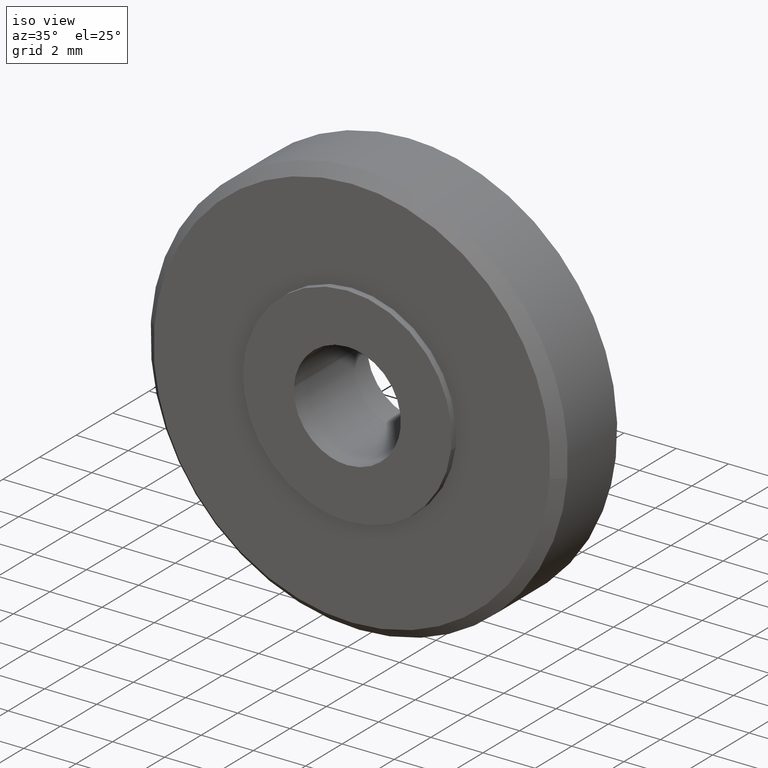
[diagram: clean part render]
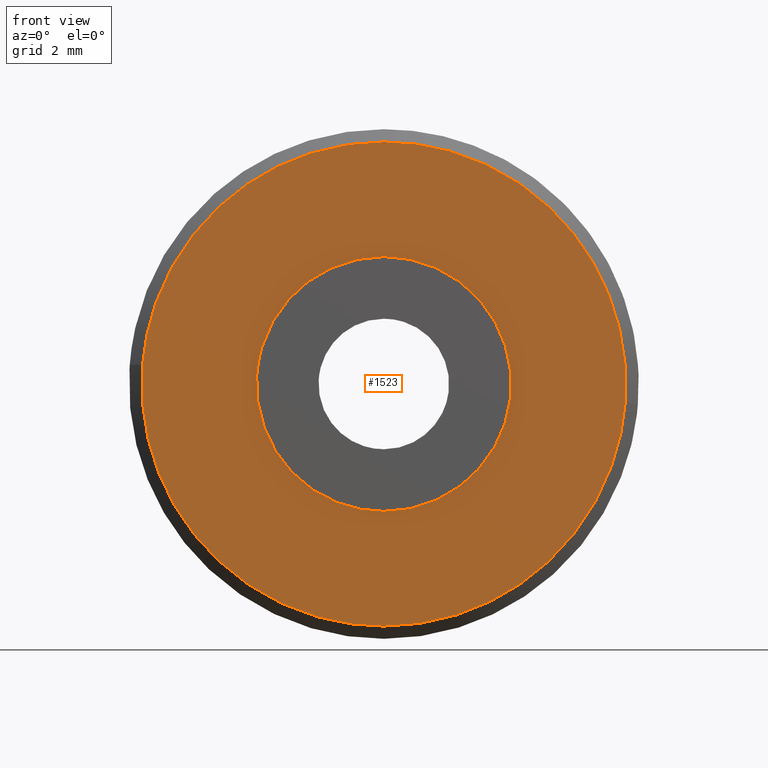
[diagram: tour spotlight — one face highlighted and labeled with its STEP entity id]
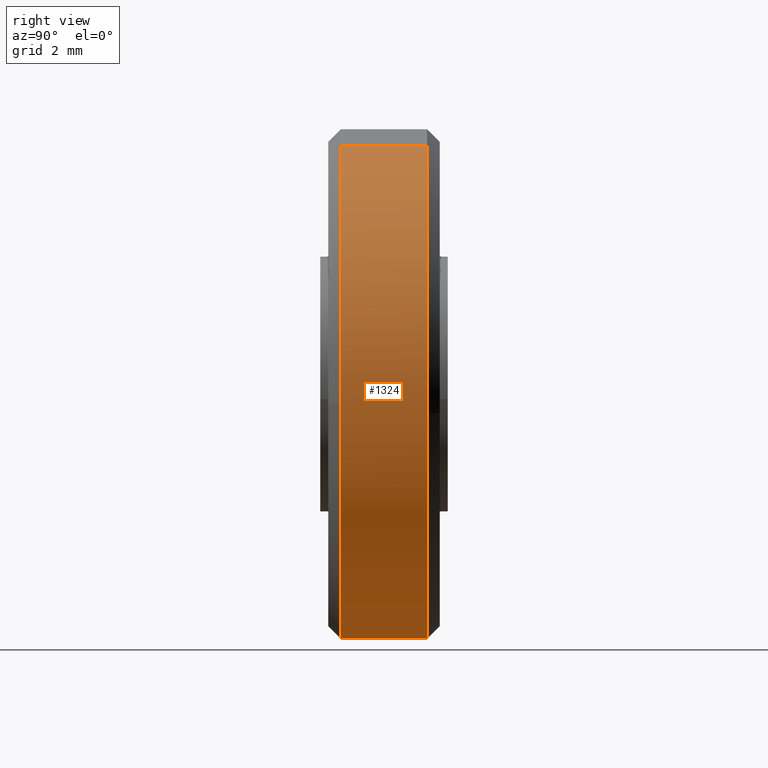
[diagram: tour spotlight — one face highlighted and labeled with its STEP entity id]
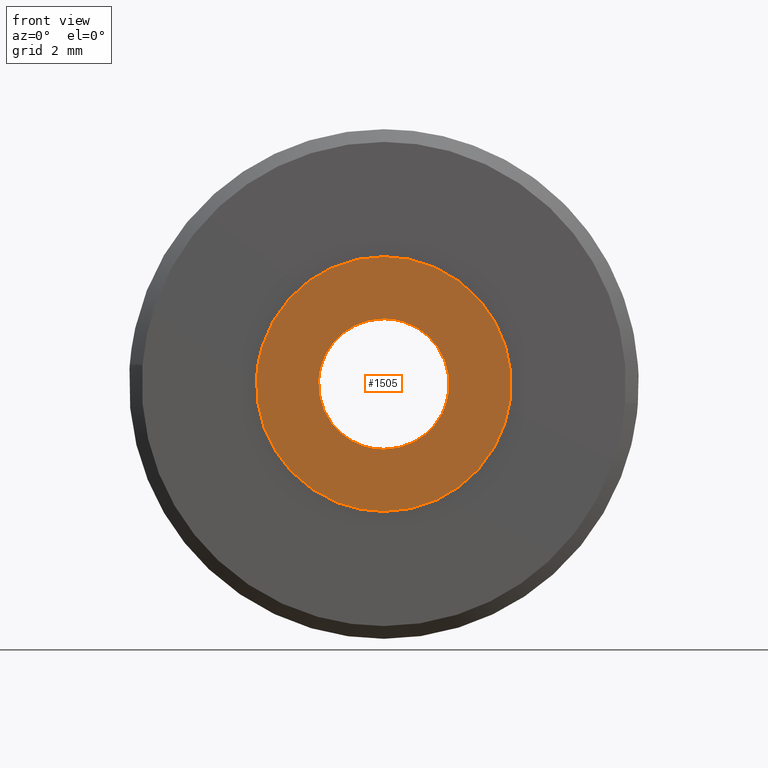
[diagram: tour spotlight — one face highlighted and labeled with its STEP entity id]
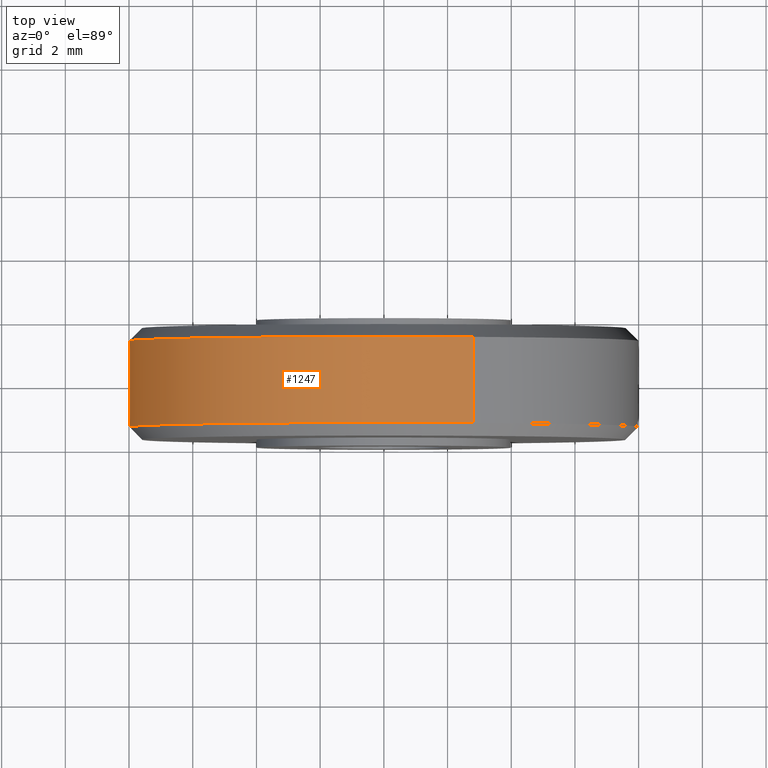
[diagram: tour spotlight — one face highlighted and labeled with its STEP entity id]
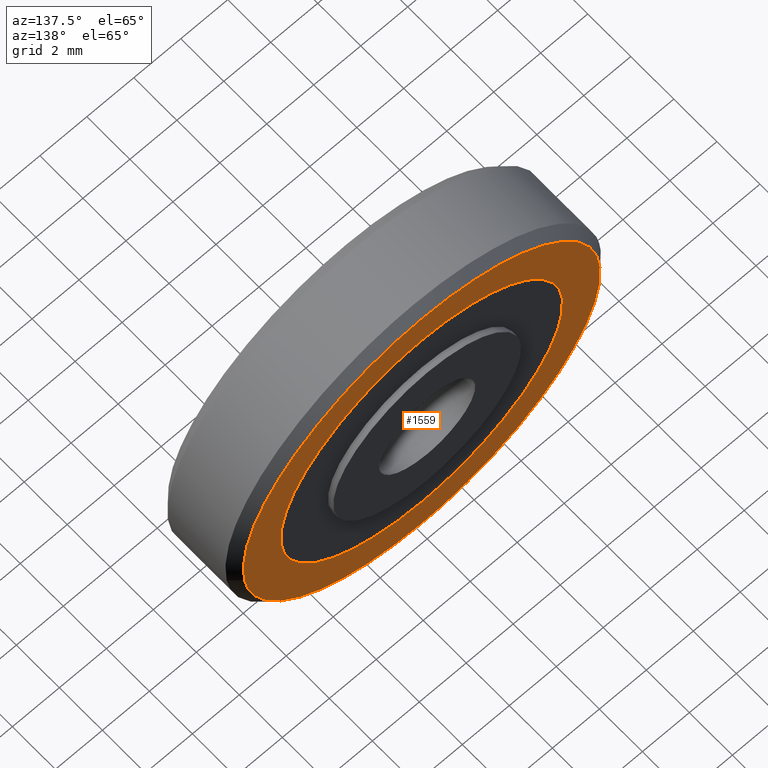
[diagram: tour spotlight — one face highlighted and labeled with its STEP entity id]
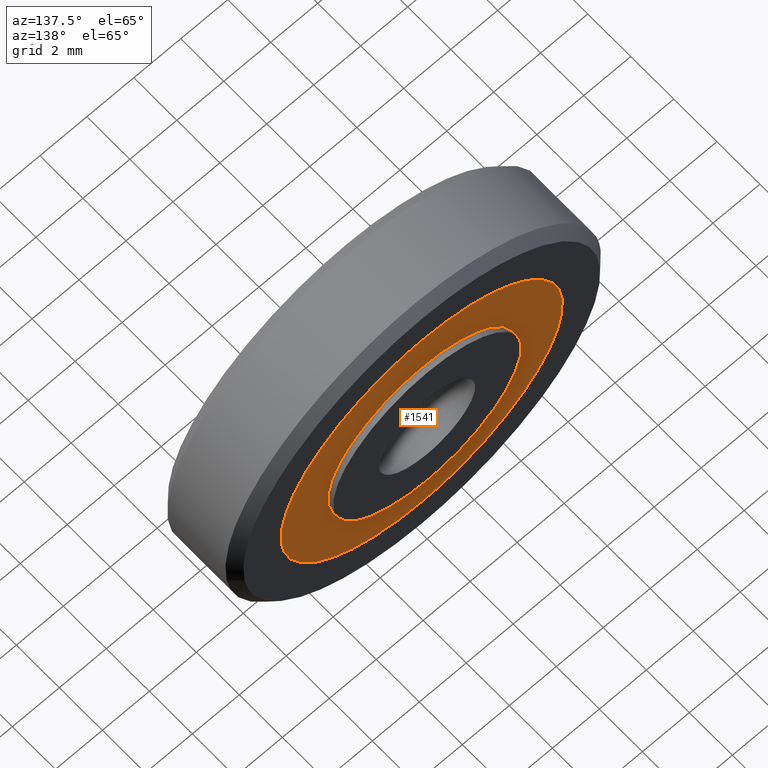
[diagram: tour spotlight — one face highlighted and labeled with its STEP entity id]
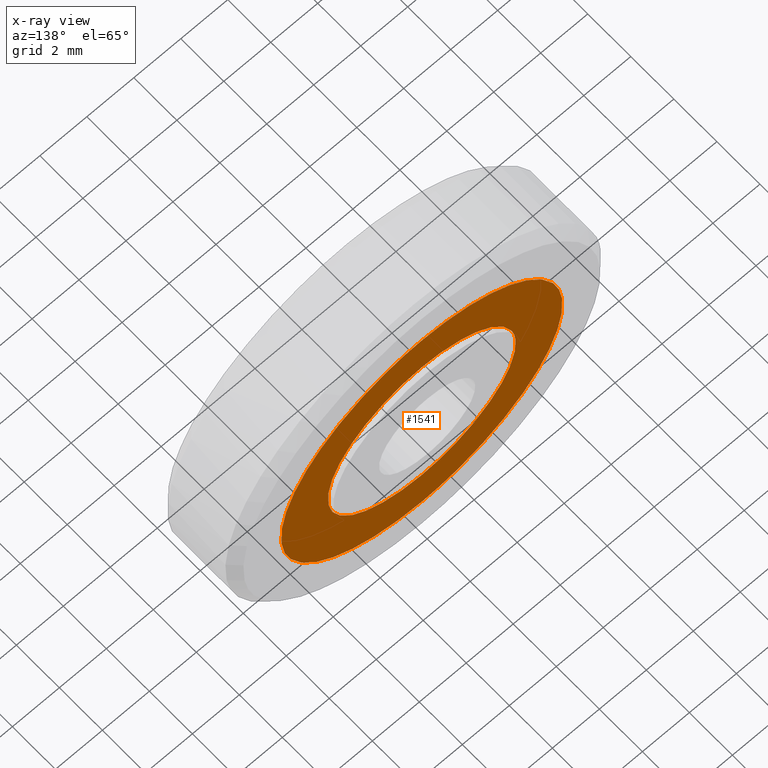
[diagram: x-ray of the same camera — body ghosted, this tour face saturated]
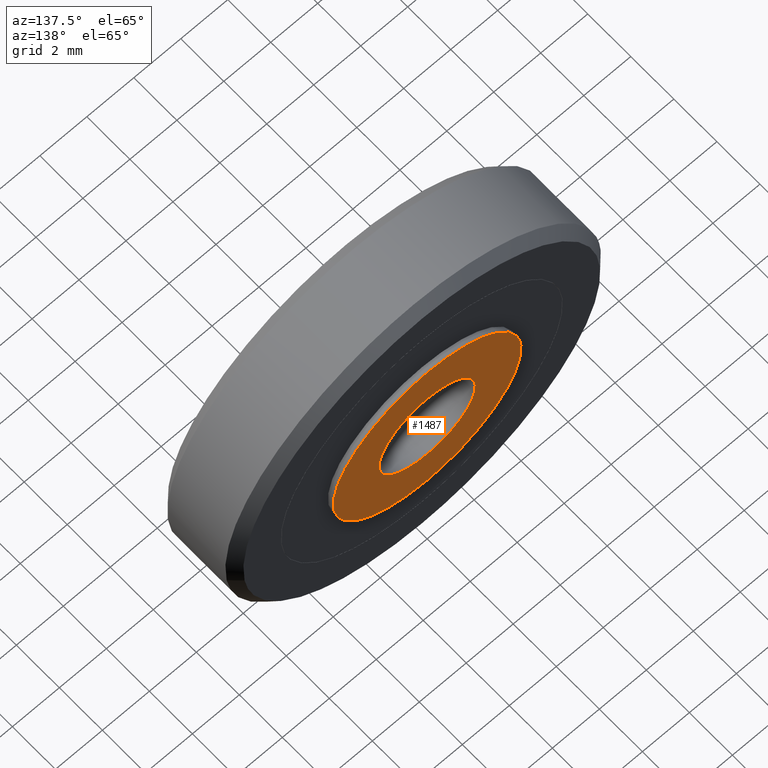
[diagram: tour spotlight — one face highlighted and labeled with its STEP entity id]
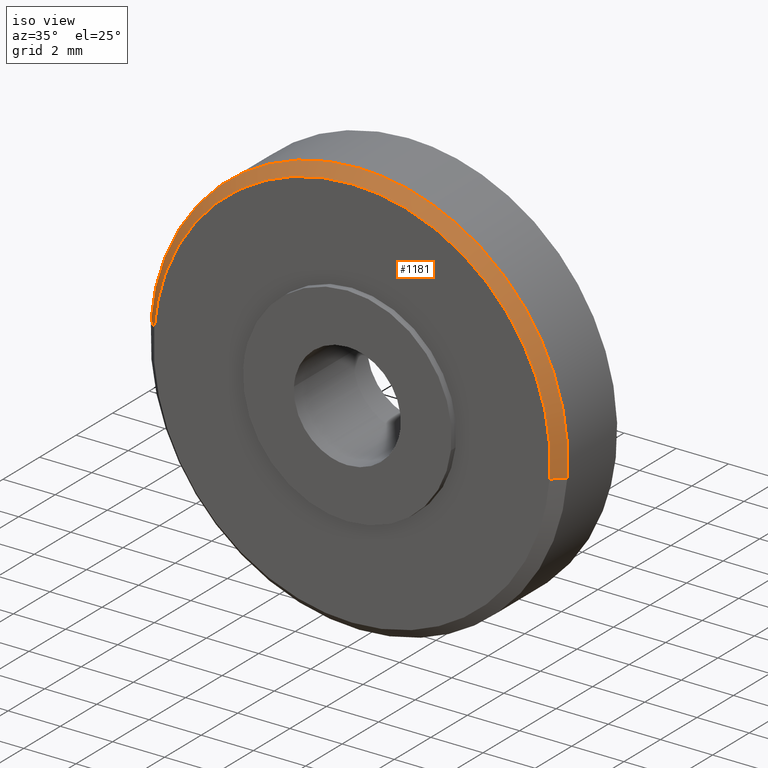
[diagram: tour spotlight — one face highlighted and labeled with its STEP entity id]
A machine part: a face-by-face anatomy tour. The part has 22 B-rep faces; the first image is the clean iso view, then the 8 largest visible faces are spotlighted one at a time (largest first), each with its STEP entity span.

Face 1 — front view, entity #1523. In plain terms, the highlighted face is a freeform B-spline surface patch.
Definition (entity closure, byte-faithful):
#825=CARTESIAN_POINT('',(3.972038726134540,0.250000000000000,-0.472131716854361));
#826=VERTEX_POINT('',#825);
#832=CARTESIAN_POINT('',(0.0,0.250000000000000,4.0));
#833=VERTEX_POINT('',#832);
#834=CARTESIAN_POINT('',(3.972038726134540,0.250000000000000,-0.472131716854361));
#835=CARTESIAN_POINT('',(4.0,0.250000000000000,-0.236893840119862));
#836=CARTESIAN_POINT('',(4.0,0.250000000000000,-1.224606E-016));
#837=CARTESIAN_POINT('',(4.000000000000000,0.250000000000000,4.000000000000000));
#838=CARTESIAN_POINT('',(0.0,0.250000000000000,4.0));
#846=(BOUNDED_CURVE()B_SPLINE_CURVE(2,(#834,#835,#836,#837,#838),.UNSPECIFIED.,.F.,.U.)B_SPLINE_CURVE_WITH_KNOTS((3,2,3),(0.229562695692923,0.250000000000000,0.500000000000000),.UNSPECIFIED.)CURVE()GEOMETRIC_REPRESENTATION_ITEM()RATIONAL_B_SPLINE_CURVE((0.956027189664907,0.976056208630520,1.0,0.707106781186548,1.0))REPRESENTATION_ITEM(''));
#847=EDGE_CURVE('',#826,#833,#846,.T.);
#849=CARTESIAN_POINT('',(-3.992539312313356,0.250000000000000,0.244192218607837));
#850=VERTEX_POINT('',#849);
#851=CARTESIAN_POINT('',(0.0,0.250000000000000,4.0));
#852=CARTESIAN_POINT('',(-3.762826098977596,0.250000000000000,4.0));
#853=CARTESIAN_POINT('',(-3.992539312313355,0.250000000000000,0.244192218607837));
#861=(BOUNDED_CURVE()B_SPLINE_CURVE(2,(#851,#852,#853),.UNSPECIFIED.,.F.,.U.)B_SPLINE_CURVE_WITH_KNOTS((3,3),(0.500000000000000,0.739333046063305),.UNSPECIFIED.)CURVE()GEOMETRIC_REPRESENTATION_ITEM()RATIONAL_B_SPLINE_CURVE((1.0,0.719603895080362,0.976072221318347))REPRESENTATION_ITEM(''));
#862=EDGE_CURVE('',#833,#850,#861,.T.);
#936=CARTESIAN_POINT('',(0.0,0.250000000000000,-4.0));
#937=VERTEX_POINT('',#936);
#938=CARTESIAN_POINT('',(-3.992539312313355,0.250000000000000,0.244192218607837));
#939=CARTESIAN_POINT('',(-4.000000000000000,0.250000000000000,0.122210080709468));
#940=CARTESIAN_POINT('',(-4.0,0.250000000000000,-1.224606E-016));
#941=CARTESIAN_POINT('',(-4.000000000000000,0.250000000000000,-4.000000000000000));
#942=CARTESIAN_POINT('',(0.0,0.250000000000000,-4.0));
#950=(BOUNDED_CURVE()B_SPLINE_CURVE(2,(#938,#939,#940,#941,#942),.UNSPECIFIED.,.F.,.U.)B_SPLINE_CURVE_WITH_KNOTS((3,2,3),(0.739333046063305,0.750000000000000,1.0),.UNSPECIFIED.)CURVE()GEOMETRIC_REPRESENTATION_ITEM()RATIONAL_B_SPLINE_CURVE((0.976072221318347,0.987502886106186,1.0,0.707106781186548,1.0))REPRESENTATION_ITEM(''));
#951=EDGE_CURVE('',#850,#937,#950,.T.);
#953=CARTESIAN_POINT('',(0.0,0.250000000000000,-4.0));
#954=CARTESIAN_POINT('',(3.552702807180724,0.250000000000000,-4.000000000000001));
#955=CARTESIAN_POINT('',(3.972038726134540,0.250000000000000,-0.472131716854361));
#963=(BOUNDED_CURVE()B_SPLINE_CURVE(2,(#953,#954,#955),.UNSPECIFIED.,.F.,.U.)B_SPLINE_CURVE_WITH_KNOTS((3,3),(0.0,0.229562695692923),.UNSPECIFIED.)CURVE()GEOMETRIC_REPRESENTATION_ITEM()RATIONAL_B_SPLINE_CURVE((1.0,0.731050572556027,0.956027189664907))REPRESENTATION_ITEM(''));
#964=EDGE_CURVE('',#937,#826,#963,.T.);
#1005=CARTESIAN_POINT('',(7.576571736372270,0.250000000001252,-0.596289127541274));
#1006=VERTEX_POINT('',#1005);
#1012=CARTESIAN_POINT('',(0.0,0.250000000000000,-7.600000000000000));
#1013=VERTEX_POINT('',#1012);
#1014=CARTESIAN_POINT('',(0.0,0.250000000000000,-7.600000000000000));
#1015=CARTESIAN_POINT('',(7.025367736584608,0.250000000000000,-7.599999999999999));
#1016=CARTESIAN_POINT('',(7.576571736372270,0.250000000001252,-0.596289127541274));
#1024=(BOUNDED_CURVE()B_SPLINE_CURVE(2,(#1014,#1015,#1016),.UNSPECIFIED.,.F.,.U.)B_SPLINE_CURVE_WITH_KNOTS((3,3),(0.0,0.236331300632335),.UNSPECIFIED.)CURVE()GEOMETRIC_REPRESENTATION_ITEM()RATIONAL_B_SPLINE_CURVE((1.0,0.723120658605703,0.969723356170914))REPRESENTATION_ITEM(''));
#1025=EDGE_CURVE('',#1013,#1006,#1024,.T.);
#1027=CARTESIAN_POINT('',(-7.576571736372269,0.250000000001252,0.596289127541271));
#1028=VERTEX_POINT('',#1027);
#1029=CARTESIAN_POINT('',(-7.576571736372269,0.250000000001252,0.596289127541271));
#1030=CARTESIAN_POINT('',(-7.600000000000000,0.250000000000000,0.298604813267883));
#1031=CARTESIAN_POINT('',(-7.600000000000000,0.250000000000000,-1.224606E-016));
#1032=CARTESIAN_POINT('',(-7.600000000000000,0.250000000000000,-7.600000000000000));
#1033=CARTESIAN_POINT('',(0.0,0.250000000000000,-7.600000000000000));
#1041=(BOUNDED_CURVE()B_SPLINE_CURVE(2,(#1029,#1030,#1031,#1032,#1033),.UNSPECIFIED.,.F.,.U.)B_SPLINE_CURVE_WITH_KNOTS((3,2,3),(0.736331300632335,0.750000000000000,1.0),.UNSPECIFIED.)CURVE()GEOMETRIC_REPRESENTATION_ITEM()RATIONAL_B_SPLINE_CURVE((0.969723356170914,0.983986122580845,1.0,0.707106781186547,1.0))REPRESENTATION_ITEM(''));
#1042=EDGE_CURVE('',#1028,#1013,#1041,.T.);
#1148=CARTESIAN_POINT('',(0.0,0.250000000000000,7.600000000000000));
#1149=VERTEX_POINT('',#1148);
#1150=CARTESIAN_POINT('',(0.0,0.250000000000000,7.600000000000000));
#1151=CARTESIAN_POINT('',(-7.025367736584633,0.250000000000000,7.600000000000000));
#1152=CARTESIAN_POINT('',(-7.576571736372269,0.250000000001252,0.596289127541271));
#1160=(BOUNDED_CURVE()B_SPLINE_CURVE(2,(#1150,#1151,#1152),.UNSPECIFIED.,.F.,.U.)B_SPLINE_CURVE_WITH_KNOTS((3,3),(0.500000000000000,0.736331300632335),.UNSPECIFIED.)CURVE()GEOMETRIC_REPRESENTATION_ITEM()RATIONAL_B_SPLINE_CURVE((1.0,0.723120658605702,0.969723356170915))REPRESENTATION_ITEM(''));
#1161=EDGE_CURVE('',#1149,#1028,#1160,.T.);
#1163=CARTESIAN_POINT('',(7.576571736372270,0.250000000001252,-0.596289127541274));
#1164=CARTESIAN_POINT('',(7.600000000000000,0.250000000000000,-0.298604813267885));
#1165=CARTESIAN_POINT('',(7.600000000000000,0.250000000000000,-1.224606E-016));
#1166=CARTESIAN_POINT('',(7.600000000000000,0.250000000000000,7.600000000000000));
#1167=CARTESIAN_POINT('',(0.0,0.250000000000000,7.600000000000000));
#1175=(BOUNDED_CURVE()B_SPLINE_CURVE(2,(#1163,#1164,#1165,#1166,#1167),.UNSPECIFIED.,.F.,.U.)B_SPLINE_CURVE_WITH_KNOTS((3,2,3),(0.236331300632335,0.250000000000000,0.500000000000000),.UNSPECIFIED.)CURVE()GEOMETRIC_REPRESENTATION_ITEM()RATIONAL_B_SPLINE_CURVE((0.969723356170914,0.983986122580844,1.0,0.707106781186547,1.0))REPRESENTATION_ITEM(''));
#1176=EDGE_CURVE('',#1006,#1149,#1175,.T.);
#1506=CARTESIAN_POINT('',(-8.356919638358830,0.250000000000000,-8.359239970539450));
#1507=CARTESIAN_POINT('',(-8.356919638358830,0.250000000000000,8.359240378235221));
#1508=CARTESIAN_POINT('',(8.356919366561646,0.250000000000000,-8.359239970539450));
#1509=CARTESIAN_POINT('',(8.356919366561646,0.250000000000000,8.359240378235221));
#1510=B_SPLINE_SURFACE_WITH_KNOTS('',1,1,((#1506,#1508),(#1507,#1509)),.UNSPECIFIED.,.F.,.F.,.U.,(2,2),(2,2),(0.0,16.718480348774669),(0.0,16.713839004920480),.UNSPECIFIED.);
#1511=ORIENTED_EDGE('',*,*,#1025,.T.);
#1512=ORIENTED_EDGE('',*,*,#1176,.T.);
#1513=ORIENTED_EDGE('',*,*,#1161,.T.);
#1514=ORIENTED_EDGE('',*,*,#1042,.T.);
#1515=EDGE_LOOP('',(#1511,#1512,#1513,#1514));
#1516=FACE_OUTER_BOUND('',#1515,.T.);
#1517=ORIENTED_EDGE('',*,*,#862,.F.);
#1518=ORIENTED_EDGE('',*,*,#847,.F.);
#1519=ORIENTED_EDGE('',*,*,#964,.F.);
#1520=ORIENTED_EDGE('',*,*,#951,.F.);
#1521=EDGE_LOOP('',(#1517,#1518,#1519,#1520));
#1522=FACE_BOUND('',#1521,.T.);
#1523=ADVANCED_FACE('',(#1516,#1522),#1510,.F.);

Face 2 — right view, entity #1324. In plain terms, the highlighted face is a freeform B-spline surface patch.
Definition (entity closure, byte-faithful):
#988=CARTESIAN_POINT('',(0.0,0.650000000000000,-8.0));
#989=VERTEX_POINT('',#988);
#990=CARTESIAN_POINT('',(7.975338669865577,0.650000000001389,-0.627672765833426));
#991=VERTEX_POINT('',#990);
#992=CARTESIAN_POINT('',(0.0,0.650000000000000,-8.0));
#993=CARTESIAN_POINT('',(7.395123933246020,0.650000000000000,-8.0));
#994=CARTESIAN_POINT('',(7.975338669865577,0.650000000001389,-0.627672765833426));
#1002=(BOUNDED_CURVE()B_SPLINE_CURVE(2,(#992,#993,#994),.UNSPECIFIED.,.F.,.U.)B_SPLINE_CURVE_WITH_KNOTS((3,3),(0.0,0.236331300632313),.UNSPECIFIED.)CURVE()GEOMETRIC_REPRESENTATION_ITEM()RATIONAL_B_SPLINE_CURVE((1.0,0.723120658605728,0.969723356170868))REPRESENTATION_ITEM(''));
#1003=EDGE_CURVE('',#989,#991,#1002,.T.);
#1051=CARTESIAN_POINT('',(-7.985078721705695,0.650000000000000,0.488382849957833));
#1052=VERTEX_POINT('',#1051);
#1066=CARTESIAN_POINT('',(-7.985078721705695,0.650000000000000,0.488382849957833));
#1067=CARTESIAN_POINT('',(-8.000000000000002,0.650000000000000,0.244419365564827));
#1068=CARTESIAN_POINT('',(-8.0,0.650000000000000,-1.224606E-016));
#1069=CARTESIAN_POINT('',(-8.0,0.650000000000000,-8.0));
#1070=CARTESIAN_POINT('',(0.0,0.650000000000000,-8.0));
#1078=(BOUNDED_CURVE()B_SPLINE_CURVE(2,(#1066,#1067,#1068,#1069,#1070),.UNSPECIFIED.,.F.,.U.)B_SPLINE_CURVE_WITH_KNOTS((3,2,3),(0.739333080361814,0.750000000000000,1.0),.UNSPECIFIED.)CURVE()GEOMETRIC_REPRESENTATION_ITEM()RATIONAL_B_SPLINE_CURVE((0.976072294826647,0.987502926289389,1.0,0.707106781186548,1.0))REPRESENTATION_ITEM(''));
#1079=EDGE_CURVE('',#1052,#989,#1078,.T.);
#1102=CARTESIAN_POINT('',(2.812943094418373,0.650000000000000,7.489148893403270));
#1103=VERTEX_POINT('',#1102);
#1104=CARTESIAN_POINT('',(7.975338669865577,0.650000000001389,-0.627672765833426));
#1105=CARTESIAN_POINT('',(8.000000000000002,0.650000000000000,-0.314320856071962));
#1106=CARTESIAN_POINT('',(8.0,0.650000000000000,-1.224606E-016));
#1107=CARTESIAN_POINT('',(8.0,0.650000000000000,5.540877873133822));
#1108=CARTESIAN_POINT('',(2.812943094418373,0.650000000000000,7.489148893403270));
#1116=(BOUNDED_CURVE()B_SPLINE_CURVE(2,(#1104,#1105,#1106,#1107,#1108),.UNSPECIFIED.,.F.,.U.)B_SPLINE_CURVE_WITH_KNOTS((3,2,3),(0.236331300632313,0.250000000000000,0.440284200455736),.UNSPECIFIED.)CURVE()GEOMETRIC_REPRESENTATION_ITEM()RATIONAL_B_SPLINE_CURVE((0.969723356170868,0.983986122580819,1.0,0.777068192156701,0.893499590806314))REPRESENTATION_ITEM(''));
#1117=EDGE_CURVE('',#991,#1103,#1116,.T.);
#1200=CARTESIAN_POINT('',(2.812941999224945,3.349999999999995,7.489149304760366));
#1201=VERTEX_POINT('',#1200);
#1217=CARTESIAN_POINT('',(-7.985078387375440,3.349999999998263,0.488388316285977));
#1218=VERTEX_POINT('',#1217);
#1232=CARTESIAN_POINT('',(-7.985078387375440,3.349999999998263,0.488388316285977));
#1233=CARTESIAN_POINT('',(-7.985078721705695,0.650000000000000,0.488382849957833));
#1234=QUASI_UNIFORM_CURVE('',1,(#1232,#1233),.UNSPECIFIED.,.F.,.U.);
#1235=EDGE_CURVE('',#1218,#1052,#1234,.T.);
#1240=CARTESIAN_POINT('',(2.812941999224945,3.349999999999995,7.489149304760366));
#1241=CARTESIAN_POINT('',(2.812943094418373,0.650000000000000,7.489148893403270));
#1242=QUASI_UNIFORM_CURVE('',1,(#1240,#1241),.UNSPECIFIED.,.F.,.U.);
#1243=EDGE_CURVE('',#1201,#1103,#1242,.T.);
#1248=CARTESIAN_POINT('',(-7.985078387374934,3.417500000000000,0.488388316278856));
#1249=CARTESIAN_POINT('',(-8.473466703653790,3.417500000000001,-7.496690071096078));
#1250=CARTESIAN_POINT('',(-0.488388316278856,3.417500000000000,-7.985078387374934));
#1251=CARTESIAN_POINT('',(7.496690071096078,3.417500000000001,-8.473466703653790));
#1252=CARTESIAN_POINT('',(7.985078387374934,3.417500000000000,-0.488388316278856));
#1253=CARTESIAN_POINT('',(8.345897782954735,3.417500000000000,5.410956654424521));
#1254=CARTESIAN_POINT('',(2.812943795132577,3.417500000000000,7.489148630213257));
#1255=CARTESIAN_POINT('',(-7.985078387374934,0.580812500000000,0.488388316278856));
#1256=CARTESIAN_POINT('',(-8.473466703653790,0.580812500000000,-7.496690071096078));
#1257=CARTESIAN_POINT('',(-0.488388316278856,0.580812500000000,-7.985078387374934));
#1258=CARTESIAN_POINT('',(7.496690071096078,0.580812500000000,-8.473466703653790));
#1259=CARTESIAN_POINT('',(7.985078387374934,0.580812500000000,-0.488388316278856));
#1260=CARTESIAN_POINT('',(8.345897782954735,0.580812500000000,5.410956654424521));
#1261=CARTESIAN_POINT('',(2.812943795132577,0.580812500000000,7.489148630213257));
#1269=(BOUNDED_SURFACE()B_SPLINE_SURFACE(2,1,((#1248,#1255),(#1249,#1256),(#1250,#1257),(#1251,#1258),(#1252,#1259),(#1253,#1260),(#1254,#1261)),.UNSPECIFIED.,.F.,.F.,.U.)B_SPLINE_SURFACE_WITH_KNOTS((3,2,2,3),(2,2),(0.0,13.254833995939039,26.509667991878072,37.113535188629299),(0.0,2.836687500000001),.UNSPECIFIED.)GEOMETRIC_REPRESENTATION_ITEM()RATIONAL_B_SPLINE_SURFACE(((1.0,1.0),(0.707106781186548,0.707106781186548),(1.0,1.0),(0.707106781186548,0.707106781186548),(1.0,1.0),(0.765685424949238,0.765685424949238),(0.906274169979695,0.906274169979695)))REPRESENTATION_ITEM('')SURFACE());
#1270=CARTESIAN_POINT('',(7.944076210909340,3.349999999999953,-0.944273877254476));
#1271=VERTEX_POINT('',#1270);
#1272=CARTESIAN_POINT('',(7.944076210909340,3.349999999999953,-0.944273877254476));
#1273=CARTESIAN_POINT('',(8.0,3.350000000000000,-0.473792957215687));
#1274=CARTESIAN_POINT('',(8.0,3.350000000000000,-1.224606E-016));
#1275=CARTESIAN_POINT('',(8.0,3.350000000000000,5.540878184899050));
#1276=CARTESIAN_POINT('',(2.812941999224944,3.349999999999996,7.489149304760366));
#1284=(BOUNDED_CURVE()B_SPLINE_CURVE(2,(#1272,#1273,#1274,#1275,#1276),.UNSPECIFIED.,.F.,.U.)B_SPLINE_CURVE_WITH_KNOTS((3,2,3),(0.229562473515627,0.250000000000000,0.440284208775499),.UNSPECIFIED.)CURVE()GEOMETRIC_REPRESENTATION_ITEM()RATIONAL_B_SPLINE_CURVE((0.956026754187852,0.976055948333627,1.0,0.777068182409492,0.893499600987734))REPRESENTATION_ITEM(''));
#1285=EDGE_CURVE('',#1271,#1201,#1284,.T.);
#1286=ORIENTED_EDGE('',*,*,#1285,.T.);
#1287=ORIENTED_EDGE('',*,*,#1243,.T.);
#1288=ORIENTED_EDGE('',*,*,#1117,.F.);
#1289=ORIENTED_EDGE('',*,*,#1003,.F.);
#1290=ORIENTED_EDGE('',*,*,#1079,.F.);
#1291=ORIENTED_EDGE('',*,*,#1235,.F.);
#1292=CARTESIAN_POINT('',(0.0,3.350000000000000,-8.0));
#1293=VERTEX_POINT('',#1292);
#1294=CARTESIAN_POINT('',(-7.985078387375441,3.349999999998263,0.488388316285977));
#1295=CARTESIAN_POINT('',(-8.0,3.350000000000000,0.244422106402877));
#1296=CARTESIAN_POINT('',(-8.0,3.350000000000000,-1.224606E-016));
#1297=CARTESIAN_POINT('',(-8.0,3.350000000000000,-8.0));
#1298=CARTESIAN_POINT('',(0.0,3.350000000000000,-8.0));
#1306=(BOUNDED_CURVE()B_SPLINE_CURVE(2,(#1294,#1295,#1296,#1297,#1298),.UNSPECIFIED.,.F.,.U.)B_SPLINE_CURVE_WITH_KNOTS((3,2,3),(0.739332962241358,0.750000000000000,1.0),.UNSPECIFIED.)CURVE()GEOMETRIC_REPRESENTATION_ITEM()RATIONAL_B_SPLINE_CURVE((0.976072041671893,0.987502787902667,1.0,0.707106781186548,1.0))REPRESENTATION_ITEM(''));
#1307=EDGE_CURVE('',#1218,#1293,#1306,.T.);
#1308=ORIENTED_EDGE('',*,*,#1307,.T.);
#1309=CARTESIAN_POINT('',(0.0,3.350000000000000,-8.0));
#1310=CARTESIAN_POINT('',(7.105396207610216,3.350000000000001,-8.0));
#1311=CARTESIAN_POINT('',(7.944076210909340,3.349999999999953,-0.944273877254476));
#1319=(BOUNDED_CURVE()B_SPLINE_CURVE(2,(#1309,#1310,#1311),.UNSPECIFIED.,.F.,.U.)B_SPLINE_CURVE_WITH_KNOTS((3,3),(0.0,0.229562473515627),.UNSPECIFIED.)CURVE()GEOMETRIC_REPRESENTATION_ITEM()RATIONAL_B_SPLINE_CURVE((1.0,0.731050832852920,0.956026754187852))REPRESENTATION_ITEM(''));
#1320=EDGE_CURVE('',#1293,#1271,#1319,.T.);
#1321=ORIENTED_EDGE('',*,*,#1320,.T.);
#1322=EDGE_LOOP('',(#1286,#1287,#1288,#1289,#1290,#1291,#1308,#1321));
#1323=FACE_OUTER_BOUND('',#1322,.T.);
#1324=ADVANCED_FACE('',(#1323),#1269,.T.);

Face 3 — front view, entity #1505. In plain terms, the highlighted face is a freeform B-spline surface patch.
Definition (entity closure, byte-faithful):
#639=CARTESIAN_POINT('',(2.035669700916635,-4.083389E-016,-0.241968735104062));
#640=VERTEX_POINT('',#639);
#646=CARTESIAN_POINT('',(0.0,-3.765665E-016,2.050000000000000));
#647=VERTEX_POINT('',#646);
#648=CARTESIAN_POINT('',(2.035669700916635,-4.083389E-016,-0.241968735104062));
#649=CARTESIAN_POINT('',(2.050000000000000,-3.765665E-016,-0.121408714672188));
#650=CARTESIAN_POINT('',(2.050000000000000,-3.765665E-016,-1.224606E-016));
#651=CARTESIAN_POINT('',(2.050000000000001,-3.765665E-016,2.050000000000001));
#652=CARTESIAN_POINT('',(0.0,-3.765665E-016,2.050000000000000));
#660=(BOUNDED_CURVE()B_SPLINE_CURVE(2,(#648,#649,#650,#651,#652),.UNSPECIFIED.,.F.,.U.)B_SPLINE_CURVE_WITH_KNOTS((3,2,3),(0.229562593559174,0.250000000000000,0.500000000000000),.UNSPECIFIED.)CURVE()GEOMETRIC_REPRESENTATION_ITEM()RATIONAL_B_SPLINE_CURVE((0.956026989478253,0.976056088973391,1.0,0.707106781186547,1.0))REPRESENTATION_ITEM(''));
#661=EDGE_CURVE('',#640,#647,#660,.T.);
#663=CARTESIAN_POINT('',(-2.046176569416860,-6.184946E-016,0.125145702103279));
#664=VERTEX_POINT('',#663);
#665=CARTESIAN_POINT('',(0.0,-3.765665E-016,2.050000000000000));
#666=CARTESIAN_POINT('',(-1.928451028938119,-3.765665E-016,2.050000000000000));
#667=CARTESIAN_POINT('',(-2.046176569416861,-6.184946E-016,0.125145702103279));
#675=(BOUNDED_CURVE()B_SPLINE_CURVE(2,(#665,#666,#667),.UNSPECIFIED.,.F.,.U.)B_SPLINE_CURVE_WITH_KNOTS((3,3),(0.500000000000000,0.739333283015075),.UNSPECIFIED.)CURVE()GEOMETRIC_REPRESENTATION_ITEM()RATIONAL_B_SPLINE_CURVE((1.0,0.719603617474095,0.976072729151996))REPRESENTATION_ITEM(''));
#676=EDGE_CURVE('',#647,#664,#675,.T.);
#750=CARTESIAN_POINT('',(0.0,-3.765665E-016,-2.050000000000000));
#751=VERTEX_POINT('',#750);
#752=CARTESIAN_POINT('',(-2.046176569416861,-6.184946E-016,0.125145702103279));
#753=CARTESIAN_POINT('',(-2.050000000000001,-3.765665E-016,0.062631257457846));
#754=CARTESIAN_POINT('',(-2.050000000000000,-3.765665E-016,-1.224606E-016));
#755=CARTESIAN_POINT('',(-2.050000000000001,-3.765665E-016,-2.050000000000001));
#756=CARTESIAN_POINT('',(0.0,-3.765665E-016,-2.050000000000000));
#764=(BOUNDED_CURVE()B_SPLINE_CURVE(2,(#752,#753,#754,#755,#756),.UNSPECIFIED.,.F.,.U.)B_SPLINE_CURVE_WITH_KNOTS((3,2,3),(0.739333283015075,0.750000000000000,1.0),.UNSPECIFIED.)CURVE()GEOMETRIC_REPRESENTATION_ITEM()RATIONAL_B_SPLINE_CURVE((0.976072729151996,0.987503163712453,1.0,0.707106781186547,1.0))REPRESENTATION_ITEM(''));
#765=EDGE_CURVE('',#664,#751,#764,.T.);
#767=CARTESIAN_POINT('',(0.0,-3.765665E-016,-2.050000000000000));
#768=CARTESIAN_POINT('',(1.820759080594776,-3.765665E-016,-2.050000000000001));
#769=CARTESIAN_POINT('',(2.035669700916635,-4.083389E-016,-0.241968735104062));
#777=(BOUNDED_CURVE()B_SPLINE_CURVE(2,(#767,#768,#769),.UNSPECIFIED.,.F.,.U.)B_SPLINE_CURVE_WITH_KNOTS((3,3),(0.0,0.229562593559174),.UNSPECIFIED.)CURVE()GEOMETRIC_REPRESENTATION_ITEM()RATIONAL_B_SPLINE_CURVE((1.0,0.731050692213156,0.956026989478253))REPRESENTATION_ITEM(''));
#778=EDGE_CURVE('',#751,#640,#777,.T.);
#806=CARTESIAN_POINT('',(3.972038733888544,-3.446847E-014,-0.472131651619270));
#807=VERTEX_POINT('',#806);
#808=CARTESIAN_POINT('',(0.0,-7.347638E-016,4.0));
#809=VERTEX_POINT('',#808);
#810=CARTESIAN_POINT('',(3.972038733888545,-3.446847E-014,-0.472131651619270));
#811=CARTESIAN_POINT('',(4.000000000000001,-7.347638E-016,-0.236893807157501));
#812=CARTESIAN_POINT('',(4.0,-7.347638E-016,-1.224606E-016));
#813=CARTESIAN_POINT('',(4.000000000000000,-7.347638E-016,4.000000000000000));
#814=CARTESIAN_POINT('',(0.0,-7.347638E-016,4.0));
#822=(BOUNDED_CURVE()B_SPLINE_CURVE(2,(#810,#811,#812,#813,#814),.UNSPECIFIED.,.F.,.U.)B_SPLINE_CURVE_WITH_KNOTS((3,2,3),(0.229562698468562,0.250000000000000,0.500000000000000),.UNSPECIFIED.)CURVE()GEOMETRIC_REPRESENTATION_ITEM()RATIONAL_B_SPLINE_CURVE((0.956027195105285,0.976056211882384,1.0,0.707106781186548,1.0))REPRESENTATION_ITEM(''));
#823=EDGE_CURVE('',#807,#809,#822,.T.);
#864=CARTESIAN_POINT('',(-3.992539313793539,1.189898E-013,0.244192194406656));
#865=VERTEX_POINT('',#864);
#871=CARTESIAN_POINT('',(0.0,-7.347638E-016,4.0));
#872=CARTESIAN_POINT('',(-3.762826121828970,-7.347638E-016,4.000000000000001));
#873=CARTESIAN_POINT('',(-3.992539313793539,1.189898E-013,0.244192194406656));
#881=(BOUNDED_CURVE()B_SPLINE_CURVE(2,(#871,#872,#873),.UNSPECIFIED.,.F.,.U.)B_SPLINE_CURVE_WITH_KNOTS((3,3),(0.500000000000000,0.739333047109215),.UNSPECIFIED.)CURVE()GEOMETRIC_REPRESENTATION_ITEM()RATIONAL_B_SPLINE_CURVE((1.0,0.719603893855002,0.976072223559933))REPRESENTATION_ITEM(''));
#882=EDGE_CURVE('',#809,#865,#881,.T.);
#905=CARTESIAN_POINT('',(0.0,-7.347638E-016,-4.0));
#906=VERTEX_POINT('',#905);
#907=CARTESIAN_POINT('',(0.0,-7.347638E-016,-4.0));
#908=CARTESIAN_POINT('',(3.552702865939553,-7.347638E-016,-4.000000000000001));
#909=CARTESIAN_POINT('',(3.972038733888545,-3.446847E-014,-0.472131651619270));
#917=(BOUNDED_CURVE()B_SPLINE_CURVE(2,(#907,#908,#909),.UNSPECIFIED.,.F.,.U.)B_SPLINE_CURVE_WITH_KNOTS((3,3),(0.0,0.229562698468562),.UNSPECIFIED.)CURVE()GEOMETRIC_REPRESENTATION_ITEM()RATIONAL_B_SPLINE_CURVE((1.0,0.731050569304164,0.956027195105285))REPRESENTATION_ITEM(''));
#918=EDGE_CURVE('',#906,#807,#917,.T.);
#920=CARTESIAN_POINT('',(-3.992539313793539,1.189898E-013,0.244192194406656));
#921=CARTESIAN_POINT('',(-4.000000000000001,-7.347638E-016,0.122210068574949));
#922=CARTESIAN_POINT('',(-4.0,-7.347638E-016,-1.224606E-016));
#923=CARTESIAN_POINT('',(-4.000000000000000,-7.347638E-016,-4.000000000000000));
#924=CARTESIAN_POINT('',(0.0,-7.347638E-016,-4.0));
#932=(BOUNDED_CURVE()B_SPLINE_CURVE(2,(#920,#921,#922,#923,#924),.UNSPECIFIED.,.F.,.U.)B_SPLINE_CURVE_WITH_KNOTS((3,2,3),(0.739333047109215,0.750000000000000,1.0),.UNSPECIFIED.)CURVE()GEOMETRIC_REPRESENTATION_ITEM()RATIONAL_B_SPLINE_CURVE((0.976072223559933,0.987502887331546,1.0,0.707106781186548,1.0))REPRESENTATION_ITEM(''));
#933=EDGE_CURVE('',#865,#906,#932,.T.);
#1488=CARTESIAN_POINT('',(-4.399502853344675,-5.556651E-016,-4.399599984494448));
#1489=CARTESIAN_POINT('',(-4.399502853344675,-5.556651E-016,4.399600199071169));
#1490=CARTESIAN_POINT('',(4.399527243565318,-5.556651E-016,-4.399599984494448));
#1491=CARTESIAN_POINT('',(4.399527243565318,-5.556651E-016,4.399600199071169));
#1492=B_SPLINE_SURFACE_WITH_KNOTS('',1,1,((#1488,#1490),(#1489,#1491)),.UNSPECIFIED.,.F.,.F.,.U.,(2,2),(2,2),(0.0,8.799200183565617),(0.0,8.799030096909993),.UNSPECIFIED.);
#1493=ORIENTED_EDGE('',*,*,#918,.T.);
#1494=ORIENTED_EDGE('',*,*,#823,.T.);
#1495=ORIENTED_EDGE('',*,*,#882,.T.);
#1496=ORIENTED_EDGE('',*,*,#933,.T.);
#1497=EDGE_LOOP('',(#1493,#1494,#1495,#1496));
#1498=FACE_OUTER_BOUND('',#1497,.T.);
#1499=ORIENTED_EDGE('',*,*,#676,.F.);
#1500=ORIENTED_EDGE('',*,*,#661,.F.);
#1501=ORIENTED_EDGE('',*,*,#778,.F.);
#1502=ORIENTED_EDGE('',*,*,#765,.F.);
#1503=EDGE_LOOP('',(#1499,#1500,#1501,#1502));
#1504=FACE_BOUND('',#1503,.T.);
#1505=ADVANCED_FACE('',(#1498,#1504),#1492,.F.);

Face 4 — top view, entity #1247. In plain terms, the highlighted face is a freeform B-spline surface patch.
Definition (entity closure, byte-faithful):
#1044=CARTESIAN_POINT('',(-7.975338669865353,0.650000000000833,0.627672765829178));
#1045=VERTEX_POINT('',#1044);
#1051=CARTESIAN_POINT('',(-7.985078721705695,0.650000000000000,0.488382849957833));
#1052=VERTEX_POINT('',#1051);
#1053=CARTESIAN_POINT('',(-7.975338669865353,0.650000000000833,0.627672765829178));
#1054=CARTESIAN_POINT('',(-7.980816501966211,0.650000000000000,0.558070309636122));
#1055=CARTESIAN_POINT('',(-7.985078721705695,0.650000000000000,0.488382849957833));
#1063=(BOUNDED_CURVE()B_SPLINE_CURVE(2,(#1053,#1054,#1055),.UNSPECIFIED.,.F.,.U.)B_SPLINE_CURVE_WITH_KNOTS((3,3),(0.736331300632494,0.739333080361814),.UNSPECIFIED.)CURVE()GEOMETRIC_REPRESENTATION_ITEM()RATIONAL_B_SPLINE_CURVE((0.969723356171246,0.972855598818611,0.976072294826647))REPRESENTATION_ITEM(''));
#1064=EDGE_CURVE('',#1045,#1052,#1063,.T.);
#1102=CARTESIAN_POINT('',(2.812943094418373,0.650000000000000,7.489148893403270));
#1103=VERTEX_POINT('',#1102);
#1119=CARTESIAN_POINT('',(0.0,0.650000000000000,8.0));
#1120=VERTEX_POINT('',#1119);
#1121=CARTESIAN_POINT('',(2.812943094418374,0.650000000000000,7.489148893403270));
#1122=CARTESIAN_POINT('',(1.452858315335820,0.650000000000000,8.0));
#1123=CARTESIAN_POINT('',(0.0,0.650000000000000,8.0));
#1131=(BOUNDED_CURVE()B_SPLINE_CURVE(2,(#1121,#1122,#1123),.UNSPECIFIED.,.F.,.U.)B_SPLINE_CURVE_WITH_KNOTS((3,3),(0.440284200455737,0.500000000000000),.UNSPECIFIED.)CURVE()GEOMETRIC_REPRESENTATION_ITEM()RATIONAL_B_SPLINE_CURVE((0.893499590806314,0.930038589029847,1.0))REPRESENTATION_ITEM(''));
#1132=EDGE_CURVE('',#1103,#1120,#1131,.T.);
#1134=CARTESIAN_POINT('',(0.0,0.650000000000000,8.0));
#1135=CARTESIAN_POINT('',(-7.395123933253803,0.650000000000000,8.0));
#1136=CARTESIAN_POINT('',(-7.975338669865353,0.650000000000833,0.627672765829178));
#1144=(BOUNDED_CURVE()B_SPLINE_CURVE(2,(#1134,#1135,#1136),.UNSPECIFIED.,.F.,.U.)B_SPLINE_CURVE_WITH_KNOTS((3,3),(0.500000000000000,0.736331300632493),.UNSPECIFIED.)CURVE()GEOMETRIC_REPRESENTATION_ITEM()RATIONAL_B_SPLINE_CURVE((1.0,0.723120658605518,0.969723356171244))REPRESENTATION_ITEM(''));
#1145=EDGE_CURVE('',#1120,#1045,#1144,.T.);
#1182=CARTESIAN_POINT('',(2.812943795132577,3.417500000000000,7.489148630213257));
#1183=CARTESIAN_POINT('',(1.687915613723266,3.417500000000001,7.911712154921204));
#1184=CARTESIAN_POINT('',(0.488388316278856,3.417500000000000,7.985078387374934));
#1185=CARTESIAN_POINT('',(-7.496690071096078,3.417500000000001,8.473466703653790));
#1186=CARTESIAN_POINT('',(-7.985078387374934,3.417500000000000,0.488388316278856));
#1187=CARTESIAN_POINT('',(2.812943795132577,0.580812500000000,7.489148630213257));
#1188=CARTESIAN_POINT('',(1.687915613723266,0.580812500000000,7.911712154921204));
#1189=CARTESIAN_POINT('',(0.488388316278856,0.580812500000000,7.985078387374934));
#1190=CARTESIAN_POINT('',(-7.496690071096078,0.580812500000000,8.473466703653790));
#1191=CARTESIAN_POINT('',(-7.985078387374934,0.580812500000000,0.488388316278856));
#1199=(BOUNDED_SURFACE()B_SPLINE_SURFACE(2,1,((#1182,#1187),(#1183,#1188),(#1184,#1189),(#1185,#1190),(#1186,#1191)),.UNSPECIFIED.,.F.,.F.,.U.)B_SPLINE_SURFACE_WITH_KNOTS((3,2,3),(2,2),(0.0,2.650966799187807,15.905800795126840),(0.0,2.836687500000001),.UNSPECIFIED.)GEOMETRIC_REPRESENTATION_ITEM()RATIONAL_B_SPLINE_SURFACE(((0.906274169979695,0.906274169979695),(0.941421356237309,0.941421356237309),(1.0,1.0),(0.707106781186548,0.707106781186548),(1.0,1.0)))REPRESENTATION_ITEM('')SURFACE());
#1200=CARTESIAN_POINT('',(2.812941999224945,3.349999999999995,7.489149304760366));
#1201=VERTEX_POINT('',#1200);
#1202=CARTESIAN_POINT('',(0.0,3.350000000000000,8.0));
#1203=VERTEX_POINT('',#1202);
#1204=CARTESIAN_POINT('',(2.812941999224944,3.349999999999996,7.489149304760366));
#1205=CARTESIAN_POINT('',(1.452858097693186,3.350000000000000,8.0));
#1206=CARTESIAN_POINT('',(0.0,3.350000000000000,8.0));
#1214=(BOUNDED_CURVE()B_SPLINE_CURVE(2,(#1204,#1205,#1206),.UNSPECIFIED.,.F.,.U.)B_SPLINE_CURVE_WITH_KNOTS((3,3),(0.440284208775499,0.500000000000000),.UNSPECIFIED.)CURVE()GEOMETRIC_REPRESENTATION_ITEM()RATIONAL_B_SPLINE_CURVE((0.893499600987734,0.930038598777055,1.0))REPRESENTATION_ITEM(''));
#1215=EDGE_CURVE('',#1201,#1203,#1214,.T.);
#1216=ORIENTED_EDGE('',*,*,#1215,.T.);
#1217=CARTESIAN_POINT('',(-7.985078387375440,3.349999999998263,0.488388316285977));
#1218=VERTEX_POINT('',#1217);
#1219=CARTESIAN_POINT('',(0.0,3.350000000000000,8.0));
#1220=CARTESIAN_POINT('',(-7.525648535218923,3.350000000000001,8.0));
#1221=CARTESIAN_POINT('',(-7.985078387375440,3.349999999998263,0.488388316285977));
#1229=(BOUNDED_CURVE()B_SPLINE_CURVE(2,(#1219,#1220,#1221),.UNSPECIFIED.,.F.,.U.)B_SPLINE_CURVE_WITH_KNOTS((3,3),(0.500000000000000,0.739332962241359),.UNSPECIFIED.)CURVE()GEOMETRIC_REPRESENTATION_ITEM()RATIONAL_B_SPLINE_CURVE((1.0,0.719603993283880,0.976072041671895))REPRESENTATION_ITEM(''));
#1230=EDGE_CURVE('',#1203,#1218,#1229,.T.);
#1231=ORIENTED_EDGE('',*,*,#1230,.T.);
#1232=CARTESIAN_POINT('',(-7.985078387375440,3.349999999998263,0.488388316285977));
#1233=CARTESIAN_POINT('',(-7.985078721705695,0.650000000000000,0.488382849957833));
#1234=QUASI_UNIFORM_CURVE('',1,(#1232,#1233),.UNSPECIFIED.,.F.,.U.);
#1235=EDGE_CURVE('',#1218,#1052,#1234,.T.);
#1236=ORIENTED_EDGE('',*,*,#1235,.T.);
#1237=ORIENTED_EDGE('',*,*,#1064,.F.);
#1238=ORIENTED_EDGE('',*,*,#1145,.F.);
#1239=ORIENTED_EDGE('',*,*,#1132,.F.);
#1240=CARTESIAN_POINT('',(2.812941999224945,3.349999999999995,7.489149304760366));
#1241=CARTESIAN_POINT('',(2.812943094418373,0.650000000000000,7.489148893403270));
#1242=QUASI_UNIFORM_CURVE('',1,(#1240,#1241),.UNSPECIFIED.,.F.,.U.);
#1243=EDGE_CURVE('',#1201,#1103,#1242,.T.);
#1244=ORIENTED_EDGE('',*,*,#1243,.F.);
#1245=EDGE_LOOP('',(#1216,#1231,#1236,#1237,#1238,#1239,#1244));
#1246=FACE_OUTER_BOUND('',#1245,.T.);
#1247=ADVANCED_FACE('',(#1246),#1199,.T.);

Face 5 — auxiliary view, entity #1559. In plain terms, the highlighted face is a freeform B-spline surface patch.
Definition (entity closure, byte-faithful):
#79=CARTESIAN_POINT('',(-5.981504332555334,3.750000000000000,0.470750379292515));
#80=VERTEX_POINT('',#79);
#86=CARTESIAN_POINT('',(0.0,3.750000000000000,6.0));
#87=VERTEX_POINT('',#86);
#88=CARTESIAN_POINT('',(0.0,3.750000000000000,6.0));
#89=CARTESIAN_POINT('',(-5.546346851856796,3.750000000000000,6.0));
#90=CARTESIAN_POINT('',(-5.981504332555335,3.750000000000000,0.470750379292515));
#98=(BOUNDED_CURVE()B_SPLINE_CURVE(2,(#88,#89,#90),.UNSPECIFIED.,.F.,.U.)B_SPLINE_CURVE_WITH_KNOTS((3,3),(0.0,0.236331420859815),.UNSPECIFIED.)CURVE()GEOMETRIC_REPRESENTATION_ITEM()RATIONAL_B_SPLINE_CURVE((1.0,0.723120517750448,0.969723607076629))REPRESENTATION_ITEM(''));
#99=EDGE_CURVE('',#87,#80,#98,.T.);
#101=CARTESIAN_POINT('',(5.981504332555334,3.750000000000000,-0.470750379292515));
#102=VERTEX_POINT('',#101);
#103=CARTESIAN_POINT('',(5.981504332555335,3.750000000000000,-0.470750379292515));
#104=CARTESIAN_POINT('',(6.0,3.750000000000000,-0.235738534774877));
#105=CARTESIAN_POINT('',(6.0,3.750000000000000,0.0));
#106=CARTESIAN_POINT('',(6.0,3.749999999999999,6.0));
#107=CARTESIAN_POINT('',(0.0,3.750000000000000,6.0));
#115=(BOUNDED_CURVE()B_SPLINE_CURVE(2,(#103,#104,#105,#106,#107),.UNSPECIFIED.,.F.,.U.)B_SPLINE_CURVE_WITH_KNOTS((3,2,3),(0.736331420859815,0.750000000000000,1.0),.UNSPECIFIED.)CURVE()GEOMETRIC_REPRESENTATION_ITEM()RATIONAL_B_SPLINE_CURVE((0.969723607076629,0.983986263436099,1.0,0.707106781186548,1.0))REPRESENTATION_ITEM(''));
#116=EDGE_CURVE('',#102,#87,#115,.T.);
#192=CARTESIAN_POINT('',(0.0,3.750000000000000,-6.0));
#193=VERTEX_POINT('',#192);
#194=CARTESIAN_POINT('',(0.0,3.750000000000000,-6.0));
#195=CARTESIAN_POINT('',(5.546346851856796,3.750000000000000,-6.0));
#196=CARTESIAN_POINT('',(5.981504332555335,3.750000000000000,-0.470750379292515));
#204=(BOUNDED_CURVE()B_SPLINE_CURVE(2,(#194,#195,#196),.UNSPECIFIED.,.F.,.U.)B_SPLINE_CURVE_WITH_KNOTS((3,3),(0.500000000000000,0.736331420859815),.UNSPECIFIED.)CURVE()GEOMETRIC_REPRESENTATION_ITEM()RATIONAL_B_SPLINE_CURVE((1.0,0.723120517750448,0.969723607076629))REPRESENTATION_ITEM(''));
#205=EDGE_CURVE('',#193,#102,#204,.T.);
#207=CARTESIAN_POINT('',(-5.981504332555335,3.750000000000000,0.470750379292515));
#208=CARTESIAN_POINT('',(-6.0,3.750000000000000,0.235738534774877));
#209=CARTESIAN_POINT('',(-6.0,3.750000000000000,0.0));
#210=CARTESIAN_POINT('',(-6.0,3.749999999999999,-6.0));
#211=CARTESIAN_POINT('',(0.0,3.750000000000000,-6.0));
#219=(BOUNDED_CURVE()B_SPLINE_CURVE(2,(#207,#208,#209,#210,#211),.UNSPECIFIED.,.F.,.U.)B_SPLINE_CURVE_WITH_KNOTS((3,2,3),(0.236331420859815,0.250000000000000,0.500000000000000),.UNSPECIFIED.)CURVE()GEOMETRIC_REPRESENTATION_ITEM()RATIONAL_B_SPLINE_CURVE((0.969723607076629,0.983986263436099,1.0,0.707106781186548,1.0))REPRESENTATION_ITEM(''));
#220=EDGE_CURVE('',#80,#193,#219,.T.);
#1348=CARTESIAN_POINT('',(7.546872400363963,3.749999999998501,-0.897060183403245));
#1349=VERTEX_POINT('',#1348);
#1355=CARTESIAN_POINT('',(0.0,3.750000000000000,7.600000000000000));
#1356=VERTEX_POINT('',#1355);
#1357=CARTESIAN_POINT('',(7.546872400363963,3.749999999998500,-0.897060183403245));
#1358=CARTESIAN_POINT('',(7.600000000000000,3.750000000000000,-0.450103309366344));
#1359=CARTESIAN_POINT('',(7.600000000000000,3.750000000000000,-1.224606E-016));
#1360=CARTESIAN_POINT('',(7.600000000000000,3.750000000000000,7.600000000000000));
#1361=CARTESIAN_POINT('',(0.0,3.750000000000000,7.600000000000000));
#1369=(BOUNDED_CURVE()B_SPLINE_CURVE(2,(#1357,#1358,#1359,#1360,#1361),.UNSPECIFIED.,.F.,.U.)B_SPLINE_CURVE_WITH_KNOTS((3,2,3),(0.229562473515120,0.250000000000000,0.500000000000000),.UNSPECIFIED.)CURVE()GEOMETRIC_REPRESENTATION_ITEM()RATIONAL_B_SPLINE_CURVE((0.956026754186858,0.976055948333033,1.0,0.707106781186547,1.0))REPRESENTATION_ITEM(''));
#1370=EDGE_CURVE('',#1349,#1356,#1369,.T.);
#1372=CARTESIAN_POINT('',(-7.585824468006442,3.749999999999528,0.463968900468509));
#1373=VERTEX_POINT('',#1372);
#1374=CARTESIAN_POINT('',(0.0,3.750000000000000,7.600000000000000));
#1375=CARTESIAN_POINT('',(-7.149366108476504,3.749999999999999,7.600000000000000));
#1376=CARTESIAN_POINT('',(-7.585824468006442,3.749999999999528,0.463968900468509));
#1384=(BOUNDED_CURVE()B_SPLINE_CURVE(2,(#1374,#1375,#1376),.UNSPECIFIED.,.F.,.U.)B_SPLINE_CURVE_WITH_KNOTS((3,3),(0.500000000000000,0.739332962241805),.UNSPECIFIED.)CURVE()GEOMETRIC_REPRESENTATION_ITEM()RATIONAL_B_SPLINE_CURVE((1.0,0.719603993283357,0.976072041672852))REPRESENTATION_ITEM(''));
#1385=EDGE_CURVE('',#1356,#1373,#1384,.T.);
#1418=CARTESIAN_POINT('',(0.0,3.750000000000000,-7.600000000000000));
#1419=VERTEX_POINT('',#1418);
#1420=CARTESIAN_POINT('',(-7.585824468006442,3.749999999999528,0.463968900468509));
#1421=CARTESIAN_POINT('',(-7.600000000000000,3.750000000000000,0.232201001072853));
#1422=CARTESIAN_POINT('',(-7.600000000000000,3.750000000000000,-1.224606E-016));
#1423=CARTESIAN_POINT('',(-7.600000000000000,3.750000000000000,-7.600000000000000));
#1424=CARTESIAN_POINT('',(0.0,3.750000000000000,-7.600000000000000));
#1432=(BOUNDED_CURVE()B_SPLINE_CURVE(2,(#1420,#1421,#1422,#1423,#1424),.UNSPECIFIED.,.F.,.U.)B_SPLINE_CURVE_WITH_KNOTS((3,2,3),(0.739332962241806,0.750000000000000,1.0),.UNSPECIFIED.)CURVE()GEOMETRIC_REPRESENTATION_ITEM()RATIONAL_B_SPLINE_CURVE((0.976072041672854,0.987502787903192,1.0,0.707106781186547,1.0))REPRESENTATION_ITEM(''));
#1433=EDGE_CURVE('',#1373,#1419,#1432,.T.);
#1435=CARTESIAN_POINT('',(0.0,3.750000000000000,-7.600000000000000));
#1436=CARTESIAN_POINT('',(6.750126397209313,3.750000000000000,-7.600000000000000));
#1437=CARTESIAN_POINT('',(7.546872400363964,3.749999999998501,-0.897060183403245));
#1445=(BOUNDED_CURVE()B_SPLINE_CURVE(2,(#1435,#1436,#1437),.UNSPECIFIED.,.F.,.U.)B_SPLINE_CURVE_WITH_KNOTS((3,3),(0.0,0.229562473515120),.UNSPECIFIED.)CURVE()GEOMETRIC_REPRESENTATION_ITEM()RATIONAL_B_SPLINE_CURVE((1.0,0.731050832853514,0.956026754186859))REPRESENTATION_ITEM(''));
#1446=EDGE_CURVE('',#1419,#1349,#1445,.T.);
#1542=CARTESIAN_POINT('',(-8.359055564041617,3.750000000000000,8.359239970539450));
#1543=CARTESIAN_POINT('',(-8.359055564041615,3.750000000000000,-8.359240378235221));
#1544=CARTESIAN_POINT('',(8.359101769562246,3.750000000000000,8.359239970539450));
#1545=CARTESIAN_POINT('',(8.359101769562248,3.750000000000000,-8.359240378235221));
#1546=B_SPLINE_SURFACE_WITH_KNOTS('',1,1,((#1542,#1544),(#1543,#1545)),.UNSPECIFIED.,.F.,.F.,.U.,(2,2),(2,2),(0.0,16.718480348774669),(0.0,16.718157333603859),.UNSPECIFIED.);
#1547=ORIENTED_EDGE('',*,*,#1433,.F.);
#1548=ORIENTED_EDGE('',*,*,#1385,.F.);
#1549=ORIENTED_EDGE('',*,*,#1370,.F.);
#1550=ORIENTED_EDGE('',*,*,#1446,.F.);
#1551=EDGE_LOOP('',(#1547,#1548,#1549,#1550));
#1552=FACE_OUTER_BOUND('',#1551,.T.);
#1553=ORIENTED_EDGE('',*,*,#205,.T.);
#1554=ORIENTED_EDGE('',*,*,#116,.T.);
#1555=ORIENTED_EDGE('',*,*,#99,.T.);
#1556=ORIENTED_EDGE('',*,*,#220,.T.);
#1557=EDGE_LOOP('',(#1553,#1554,#1555,#1556));
#1558=FACE_BOUND('',#1557,.T.);
#1559=ADVANCED_FACE('',(#1552,#1558),#1546,.F.);

Face 6 — auxiliary view, entity #1541. An x-ray twin of the same camera follows (body ghosted, this face saturated) — the face is partly hidden behind the body. In plain terms, the highlighted face is a freeform B-spline surface patch.
Definition (entity closure, byte-faithful):
#278=CARTESIAN_POINT('',(5.971535223310848,3.750000000000000,-0.469964973942303));
#279=VERTEX_POINT('',#278);
#285=CARTESIAN_POINT('',(0.0,3.750000000000000,5.989999999999999));
#286=VERTEX_POINT('',#285);
#287=CARTESIAN_POINT('',(5.971535223310848,3.750000000000000,-0.469964973942303));
#288=CARTESIAN_POINT('',(5.989999999999999,3.750000000000000,-0.235345224618725));
#289=CARTESIAN_POINT('',(5.989999999999999,3.750000000000000,0.0));
#290=CARTESIAN_POINT('',(5.989999999999998,3.749999999999999,5.989999999999998));
#291=CARTESIAN_POINT('',(0.0,3.750000000000000,5.989999999999999));
#299=(BOUNDED_CURVE()B_SPLINE_CURVE(2,(#287,#288,#289,#290,#291),.UNSPECIFIED.,.F.,.U.)B_SPLINE_CURVE_WITH_KNOTS((3,2,3),(0.736331444439261,0.750000000000000,1.0),.UNSPECIFIED.)CURVE()GEOMETRIC_REPRESENTATION_ITEM()RATIONAL_B_SPLINE_CURVE((0.969723656285191,0.983986291061138,1.0,0.707106781186548,1.0))REPRESENTATION_ITEM(''));
#300=EDGE_CURVE('',#279,#286,#299,.T.);
#302=CARTESIAN_POINT('',(-5.971535223310848,3.750000000000000,0.469964973942304));
#303=VERTEX_POINT('',#302);
#304=CARTESIAN_POINT('',(0.0,3.750000000000000,5.989999999999999));
#305=CARTESIAN_POINT('',(-5.537103704420661,3.750000000000000,5.989999999999998));
#306=CARTESIAN_POINT('',(-5.971535223310848,3.750000000000000,0.469964973942304));
#314=(BOUNDED_CURVE()B_SPLINE_CURVE(2,(#304,#305,#306),.UNSPECIFIED.,.F.,.U.)B_SPLINE_CURVE_WITH_KNOTS((3,3),(0.0,0.236331444439261),.UNSPECIFIED.)CURVE()GEOMETRIC_REPRESENTATION_ITEM()RATIONAL_B_SPLINE_CURVE((1.0,0.723120490125409,0.969723656285191))REPRESENTATION_ITEM(''));
#315=EDGE_CURVE('',#286,#303,#314,.T.);
#361=CARTESIAN_POINT('',(0.0,3.750000000000000,-5.989999999999999));
#362=VERTEX_POINT('',#361);
#363=CARTESIAN_POINT('',(-5.971535223310848,3.750000000000000,0.469964973942304));
#364=CARTESIAN_POINT('',(-5.990000000000000,3.750000000000000,0.235345224618726));
#365=CARTESIAN_POINT('',(-5.989999999999999,3.750000000000000,0.0));
#366=CARTESIAN_POINT('',(-5.989999999999998,3.749999999999999,-5.989999999999998));
#367=CARTESIAN_POINT('',(0.0,3.750000000000000,-5.989999999999999));
#375=(BOUNDED_CURVE()B_SPLINE_CURVE(2,(#363,#364,#365,#366,#367),.UNSPECIFIED.,.F.,.U.)B_SPLINE_CURVE_WITH_KNOTS((3,2,3),(0.236331444439261,0.250000000000000,0.500000000000000),.UNSPECIFIED.)CURVE()GEOMETRIC_REPRESENTATION_ITEM()RATIONAL_B_SPLINE_CURVE((0.969723656285191,0.983986291061138,1.0,0.707106781186548,1.0))REPRESENTATION_ITEM(''));
#376=EDGE_CURVE('',#303,#362,#375,.T.);
#378=CARTESIAN_POINT('',(0.0,3.750000000000000,-5.989999999999999));
#379=CARTESIAN_POINT('',(5.537103704420663,3.749999999999999,-5.989999999999998));
#380=CARTESIAN_POINT('',(5.971535223310848,3.750000000000000,-0.469964973942303));
#388=(BOUNDED_CURVE()B_SPLINE_CURVE(2,(#378,#379,#380),.UNSPECIFIED.,.F.,.U.)B_SPLINE_CURVE_WITH_KNOTS((3,3),(0.500000000000000,0.736331444439261),.UNSPECIFIED.)CURVE()GEOMETRIC_REPRESENTATION_ITEM()RATIONAL_B_SPLINE_CURVE((1.0,0.723120490125409,0.969723656285191))REPRESENTATION_ITEM(''));
#389=EDGE_CURVE('',#362,#279,#388,.T.);
#464=CARTESIAN_POINT('',(-3.992539312313356,3.750000000000000,0.244192218607837));
#465=VERTEX_POINT('',#464);
#471=CARTESIAN_POINT('',(0.0,3.750000000000000,4.0));
#472=VERTEX_POINT('',#471);
#473=CARTESIAN_POINT('',(0.0,3.750000000000000,4.0));
#474=CARTESIAN_POINT('',(-3.762826098977596,3.750000000000000,4.0));
#475=CARTESIAN_POINT('',(-3.992539312313355,3.750000000000000,0.244192218607837));
#483=(BOUNDED_CURVE()B_SPLINE_CURVE(2,(#473,#474,#475),.UNSPECIFIED.,.F.,.U.)B_SPLINE_CURVE_WITH_KNOTS((3,3),(0.500000000000000,0.739333046063305),.UNSPECIFIED.)CURVE()GEOMETRIC_REPRESENTATION_ITEM()RATIONAL_B_SPLINE_CURVE((1.0,0.719603895080362,0.976072221318347))REPRESENTATION_ITEM(''));
#484=EDGE_CURVE('',#472,#465,#483,.T.);
#486=CARTESIAN_POINT('',(3.972038726134540,3.750000000000000,-0.472131716854361));
#487=VERTEX_POINT('',#486);
#488=CARTESIAN_POINT('',(3.972038726134540,3.750000000000000,-0.472131716854361));
#489=CARTESIAN_POINT('',(4.0,3.750000000000000,-0.236893840119862));
#490=CARTESIAN_POINT('',(4.0,3.750000000000000,-1.224606E-016));
#491=CARTESIAN_POINT('',(4.000000000000000,3.749999999999999,4.000000000000000));
#492=CARTESIAN_POINT('',(0.0,3.750000000000000,4.0));
#500=(BOUNDED_CURVE()B_SPLINE_CURVE(2,(#488,#489,#490,#491,#492),.UNSPECIFIED.,.F.,.U.)B_SPLINE_CURVE_WITH_KNOTS((3,2,3),(0.229562695692923,0.250000000000000,0.500000000000000),.UNSPECIFIED.)CURVE()GEOMETRIC_REPRESENTATION_ITEM()RATIONAL_B_SPLINE_CURVE((0.956027189664907,0.976056208630520,1.0,0.707106781186548,1.0))REPRESENTATION_ITEM(''));
#501=EDGE_CURVE('',#487,#472,#500,.T.);
#545=CARTESIAN_POINT('',(0.0,3.750000000000000,-4.0));
#546=VERTEX_POINT('',#545);
#547=CARTESIAN_POINT('',(0.0,3.750000000000000,-4.0));
#548=CARTESIAN_POINT('',(3.552702807180724,3.750000000000000,-4.000000000000001));
#549=CARTESIAN_POINT('',(3.972038726134540,3.750000000000000,-0.472131716854361));
#557=(BOUNDED_CURVE()B_SPLINE_CURVE(2,(#547,#548,#549),.UNSPECIFIED.,.F.,.U.)B_SPLINE_CURVE_WITH_KNOTS((3,3),(0.0,0.229562695692923),.UNSPECIFIED.)CURVE()GEOMETRIC_REPRESENTATION_ITEM()RATIONAL_B_SPLINE_CURVE((1.0,0.731050572556027,0.956027189664907))REPRESENTATION_ITEM(''));
#558=EDGE_CURVE('',#546,#487,#557,.T.);
#560=CARTESIAN_POINT('',(-3.992539312313355,3.750000000000000,0.244192218607837));
#561=CARTESIAN_POINT('',(-4.000000000000000,3.750000000000000,0.122210080709468));
#562=CARTESIAN_POINT('',(-4.0,3.750000000000000,-1.224606E-016));
#563=CARTESIAN_POINT('',(-4.000000000000000,3.749999999999999,-4.000000000000000));
#564=CARTESIAN_POINT('',(0.0,3.750000000000000,-4.0));
#572=(BOUNDED_CURVE()B_SPLINE_CURVE(2,(#560,#561,#562,#563,#564),.UNSPECIFIED.,.F.,.U.)B_SPLINE_CURVE_WITH_KNOTS((3,2,3),(0.739333046063305,0.750000000000000,1.0),.UNSPECIFIED.)CURVE()GEOMETRIC_REPRESENTATION_ITEM()RATIONAL_B_SPLINE_CURVE((0.976072221318347,0.987502886106186,1.0,0.707106781186548,1.0))REPRESENTATION_ITEM(''));
#573=EDGE_CURVE('',#465,#546,#572,.T.);
#1524=CARTESIAN_POINT('',(-6.586572413573198,3.750000000000000,6.588400709060123));
#1525=CARTESIAN_POINT('',(-6.586572413573198,3.750000000000000,-6.588400387731483));
#1526=CARTESIAN_POINT('',(6.586571985135013,3.750000000000000,6.588400709060123));
#1527=CARTESIAN_POINT('',(6.586571985135013,3.750000000000000,-6.588400387731483));
#1528=B_SPLINE_SURFACE_WITH_KNOTS('',1,1,((#1524,#1526),(#1525,#1527)),.UNSPECIFIED.,.F.,.F.,.U.,(2,2),(2,2),(0.0,13.176801096791610),(0.0,13.173144398708210),.UNSPECIFIED.);
#1529=ORIENTED_EDGE('',*,*,#300,.F.);
#1530=ORIENTED_EDGE('',*,*,#389,.F.);
#1531=ORIENTED_EDGE('',*,*,#376,.F.);
#1532=ORIENTED_EDGE('',*,*,#315,.F.);
#1533=EDGE_LOOP('',(#1529,#1530,#1531,#1532));
#1534=FACE_OUTER_BOUND('',#1533,.T.);
#1535=ORIENTED_EDGE('',*,*,#484,.T.);
#1536=ORIENTED_EDGE('',*,*,#573,.T.);
#1537=ORIENTED_EDGE('',*,*,#558,.T.);
#1538=ORIENTED_EDGE('',*,*,#501,.T.);
#1539=EDGE_LOOP('',(#1535,#1536,#1537,#1538));
#1540=FACE_BOUND('',#1539,.T.);
#1541=ADVANCED_FACE('',(#1534,#1540),#1528,.F.);

Face 7 — auxiliary view, entity #1487. In plain terms, the highlighted face is a freeform B-spline surface patch.
Definition (entity closure, byte-faithful):
#430=CARTESIAN_POINT('',(3.972038733704035,4.000000000000034,-0.472131653171562));
#431=VERTEX_POINT('',#430);
#432=CARTESIAN_POINT('',(0.0,4.0,4.0));
#433=VERTEX_POINT('',#432);
#434=CARTESIAN_POINT('',(3.972038733704036,4.000000000000035,-0.472131653171562));
#435=CARTESIAN_POINT('',(4.000000000000001,4.000000000000001,-0.236893807941852));
#436=CARTESIAN_POINT('',(4.0,4.0,-1.224606E-016));
#437=CARTESIAN_POINT('',(4.000000000000000,4.000000000000000,4.000000000000000));
#438=CARTESIAN_POINT('',(0.0,4.0,4.0));
#446=(BOUNDED_CURVE()B_SPLINE_CURVE(2,(#434,#435,#436,#437,#438),.UNSPECIFIED.,.F.,.U.)B_SPLINE_CURVE_WITH_KNOTS((3,2,3),(0.229562698402515,0.250000000000000,0.500000000000000),.UNSPECIFIED.)CURVE()GEOMETRIC_REPRESENTATION_ITEM()RATIONAL_B_SPLINE_CURVE((0.956027194975829,0.976056211805005,1.0,0.707106781186548,1.0))REPRESENTATION_ITEM(''));
#447=EDGE_CURVE('',#431,#433,#446,.T.);
#449=CARTESIAN_POINT('',(-3.992539313758318,3.999999999999880,0.244192194982532));
#450=VERTEX_POINT('',#449);
#451=CARTESIAN_POINT('',(0.0,4.0,4.0));
#452=CARTESIAN_POINT('',(-3.762826121285214,4.000000000000001,4.000000000000001));
#453=CARTESIAN_POINT('',(-3.992539313758317,3.999999999999880,0.244192194982532));
#461=(BOUNDED_CURVE()B_SPLINE_CURVE(2,(#451,#452,#453),.UNSPECIFIED.,.F.,.U.)B_SPLINE_CURVE_WITH_KNOTS((3,3),(0.500000000000000,0.739333047084327),.UNSPECIFIED.)CURVE()GEOMETRIC_REPRESENTATION_ITEM()RATIONAL_B_SPLINE_CURVE((1.0,0.719603893884160,0.976072223506594))REPRESENTATION_ITEM(''));
#462=EDGE_CURVE('',#433,#450,#461,.T.);
#529=CARTESIAN_POINT('',(0.0,4.0,-4.0));
#530=VERTEX_POINT('',#529);
#531=CARTESIAN_POINT('',(0.0,4.0,-4.0));
#532=CARTESIAN_POINT('',(3.552702864541366,4.000000000000001,-4.000000000000001));
#533=CARTESIAN_POINT('',(3.972038733704036,4.000000000000035,-0.472131653171562));
#541=(BOUNDED_CURVE()B_SPLINE_CURVE(2,(#531,#532,#533),.UNSPECIFIED.,.F.,.U.)B_SPLINE_CURVE_WITH_KNOTS((3,3),(0.0,0.229562698402515),.UNSPECIFIED.)CURVE()GEOMETRIC_REPRESENTATION_ITEM()RATIONAL_B_SPLINE_CURVE((1.0,0.731050569381543,0.956027194975829))REPRESENTATION_ITEM(''));
#542=EDGE_CURVE('',#530,#431,#541,.T.);
#576=CARTESIAN_POINT('',(-3.992539313758317,3.999999999999880,0.244192194982532));
#577=CARTESIAN_POINT('',(-4.000000000000001,4.000000000000001,0.122210068863693));
#578=CARTESIAN_POINT('',(-4.0,4.0,-1.224606E-016));
#579=CARTESIAN_POINT('',(-4.000000000000000,4.000000000000000,-4.000000000000000));
#580=CARTESIAN_POINT('',(0.0,4.0,-4.0));
#588=(BOUNDED_CURVE()B_SPLINE_CURVE(2,(#576,#577,#578,#579,#580),.UNSPECIFIED.,.F.,.U.)B_SPLINE_CURVE_WITH_KNOTS((3,2,3),(0.739333047084327,0.750000000000000,1.0),.UNSPECIFIED.)CURVE()GEOMETRIC_REPRESENTATION_ITEM()RATIONAL_B_SPLINE_CURVE((0.976072223506594,0.987502887302388,1.0,0.707106781186548,1.0))REPRESENTATION_ITEM(''));
#589=EDGE_CURVE('',#450,#530,#588,.T.);
#620=CARTESIAN_POINT('',(2.035669703009237,3.999999999999993,-0.241968717498998));
#621=VERTEX_POINT('',#620);
#622=CARTESIAN_POINT('',(0.0,4.0,2.050000000000000));
#623=VERTEX_POINT('',#622);
#624=CARTESIAN_POINT('',(2.035669703009238,3.999999999999993,-0.241968717498998));
#625=CARTESIAN_POINT('',(2.050000000000001,4.000000000000000,-0.121408705776598));
#626=CARTESIAN_POINT('',(2.050000000000000,4.0,-1.224606E-016));
#627=CARTESIAN_POINT('',(2.050000000000001,4.0,2.050000000000001));
#628=CARTESIAN_POINT('',(0.0,4.0,2.050000000000000));
#636=(BOUNDED_CURVE()B_SPLINE_CURVE(2,(#624,#625,#626,#627,#628),.UNSPECIFIED.,.F.,.U.)B_SPLINE_CURVE_WITH_KNOTS((3,2,3),(0.229562595020764,0.250000000000000,0.500000000000000),.UNSPECIFIED.)CURVE()GEOMETRIC_REPRESENTATION_ITEM()RATIONAL_B_SPLINE_CURVE((0.956026992343031,0.976056090685750,1.0,0.707106781186547,1.0))REPRESENTATION_ITEM(''));
#637=EDGE_CURVE('',#621,#623,#636,.T.);
#678=CARTESIAN_POINT('',(-2.046176336764324,4.0,0.125149506054692));
#679=VERTEX_POINT('',#678);
#685=CARTESIAN_POINT('',(0.0,4.0,2.050000000000000));
#686=CARTESIAN_POINT('',(-1.928447437141122,4.0,2.050000000000001));
#687=CARTESIAN_POINT('',(-2.046176336764324,4.000000000000001,0.125149506054692));
#695=(BOUNDED_CURVE()B_SPLINE_CURVE(2,(#685,#686,#687),.UNSPECIFIED.,.F.,.U.)B_SPLINE_CURVE_WITH_KNOTS((3,3),(0.500000000000000,0.739332962240579),.UNSPECIFIED.)CURVE()GEOMETRIC_REPRESENTATION_ITEM()RATIONAL_B_SPLINE_CURVE((1.0,0.719603993284793,0.976072041670225))REPRESENTATION_ITEM(''));
#696=EDGE_CURVE('',#623,#679,#695,.T.);
#719=CARTESIAN_POINT('',(0.0,4.0,-2.050000000000000));
#720=VERTEX_POINT('',#719);
#721=CARTESIAN_POINT('',(0.0,4.0,-2.050000000000000));
#722=CARTESIAN_POINT('',(1.820759096452078,4.000000000000001,-2.050000000000000));
#723=CARTESIAN_POINT('',(2.035669703009238,3.999999999999993,-0.241968717498998));
#731=(BOUNDED_CURVE()B_SPLINE_CURVE(2,(#721,#722,#723),.UNSPECIFIED.,.F.,.U.)B_SPLINE_CURVE_WITH_KNOTS((3,3),(0.0,0.229562595020764),.UNSPECIFIED.)CURVE()GEOMETRIC_REPRESENTATION_ITEM()RATIONAL_B_SPLINE_CURVE((1.0,0.731050690500798,0.956026992343031))REPRESENTATION_ITEM(''));
#732=EDGE_CURVE('',#720,#621,#731,.T.);
#734=CARTESIAN_POINT('',(-2.046176336764324,4.000000000000001,0.125149506054692));
#735=CARTESIAN_POINT('',(-2.050000000000000,4.0,0.062633164770366));
#736=CARTESIAN_POINT('',(-2.050000000000000,4.0,-1.224606E-016));
#737=CARTESIAN_POINT('',(-2.050000000000001,4.0,-2.050000000000001));
#738=CARTESIAN_POINT('',(0.0,4.0,-2.050000000000000));
#746=(BOUNDED_CURVE()B_SPLINE_CURVE(2,(#734,#735,#736,#737,#738),.UNSPECIFIED.,.F.,.U.)B_SPLINE_CURVE_WITH_KNOTS((3,2,3),(0.739332962240579,0.750000000000000,1.0),.UNSPECIFIED.)CURVE()GEOMETRIC_REPRESENTATION_ITEM()RATIONAL_B_SPLINE_CURVE((0.976072041670225,0.987502787901755,1.0,0.707106781186547,1.0))REPRESENTATION_ITEM(''));
#747=EDGE_CURVE('',#679,#720,#746,.T.);
#1470=CARTESIAN_POINT('',(-4.399502853344675,4.0,4.399599984494448));
#1471=CARTESIAN_POINT('',(-4.399502853344675,4.0,-4.399600199071169));
#1472=CARTESIAN_POINT('',(4.399527243565318,4.0,4.399599984494448));
#1473=CARTESIAN_POINT('',(4.399527243565318,4.0,-4.399600199071169));
#1474=B_SPLINE_SURFACE_WITH_KNOTS('',1,1,((#1470,#1472),(#1471,#1473)),.UNSPECIFIED.,.F.,.F.,.U.,(2,2),(2,2),(0.0,8.799200183565617),(0.0,8.799030096909993),.UNSPECIFIED.);
#1475=ORIENTED_EDGE('',*,*,#589,.F.);
#1476=ORIENTED_EDGE('',*,*,#462,.F.);
#1477=ORIENTED_EDGE('',*,*,#447,.F.);
#1478=ORIENTED_EDGE('',*,*,#542,.F.);
#1479=EDGE_LOOP('',(#1475,#1476,#1477,#1478));
#1480=FACE_OUTER_BOUND('',#1479,.T.);
#1481=ORIENTED_EDGE('',*,*,#696,.T.);
#1482=ORIENTED_EDGE('',*,*,#747,.T.);
#1483=ORIENTED_EDGE('',*,*,#732,.T.);
#1484=ORIENTED_EDGE('',*,*,#637,.T.);
#1485=EDGE_LOOP('',(#1481,#1482,#1483,#1484));
#1486=FACE_BOUND('',#1485,.T.);
#1487=ADVANCED_FACE('',(#1480,#1486),#1474,.F.);

Face 8 — iso view, entity #1181. In plain terms, the highlighted face is a freeform B-spline surface patch.
Definition (entity closure, byte-faithful):
#990=CARTESIAN_POINT('',(7.975338669865577,0.650000000001389,-0.627672765833426));
#991=VERTEX_POINT('',#990);
#1005=CARTESIAN_POINT('',(7.576571736372270,0.250000000001252,-0.596289127541274));
#1006=VERTEX_POINT('',#1005);
#1007=CARTESIAN_POINT('',(7.576571736372270,0.250000000001252,-0.596289127541274));
#1008=CARTESIAN_POINT('',(7.975338669865577,0.650000000001389,-0.627672765833426));
#1009=QUASI_UNIFORM_CURVE('',1,(#1007,#1008),.UNSPECIFIED.,.F.,.U.);
#1010=EDGE_CURVE('',#1006,#991,#1009,.T.);
#1027=CARTESIAN_POINT('',(-7.576571736372269,0.250000000001252,0.596289127541271));
#1028=VERTEX_POINT('',#1027);
#1044=CARTESIAN_POINT('',(-7.975338669865353,0.650000000000833,0.627672765829178));
#1045=VERTEX_POINT('',#1044);
#1046=CARTESIAN_POINT('',(-7.576571736372269,0.250000000001252,0.596289127541271));
#1047=CARTESIAN_POINT('',(-7.975338669865353,0.650000000000833,0.627672765829178));
#1048=QUASI_UNIFORM_CURVE('',1,(#1046,#1047),.UNSPECIFIED.,.F.,.U.);
#1049=EDGE_CURVE('',#1028,#1045,#1048,.T.);
#1084=CARTESIAN_POINT('',(-7.566602563034445,0.240000000000000,0.595504536574348));
#1085=CARTESIAN_POINT('',(-6.971098026460096,0.240000000000000,8.162107099608793));
#1086=CARTESIAN_POINT('',(0.595504536574348,0.240000000000000,7.566602563034445));
#1087=CARTESIAN_POINT('',(8.162107099608793,0.240000000000000,6.971098026460096));
#1088=CARTESIAN_POINT('',(7.566602563034445,0.240000000000000,-0.595504536574348));
#1089=CARTESIAN_POINT('',(-7.985557072535785,0.660250000000000,0.628476971553975));
#1090=CARTESIAN_POINT('',(-7.357080100981810,0.660250000000000,8.614034044089760));
#1091=CARTESIAN_POINT('',(0.628476971553975,0.660250000000000,7.985557072535785));
#1092=CARTESIAN_POINT('',(8.614034044089760,0.660250000000000,7.357080100981810));
#1093=CARTESIAN_POINT('',(7.985557072535785,0.660250000000000,-0.628476971553975));
#1101=(BOUNDED_SURFACE()B_SPLINE_SURFACE(2,1,((#1084,#1089),(#1085,#1090),(#1086,#1091),(#1087,#1092),(#1088,#1093)),.UNSPECIFIED.,.F.,.F.,.U.)B_SPLINE_SURFACE_WITH_KNOTS((3,2,3),(2,2),(0.0,13.271816751996329,26.543633503992670),(0.0,1.0),.UNSPECIFIED.)GEOMETRIC_REPRESENTATION_ITEM()RATIONAL_B_SPLINE_SURFACE(((1.0,1.0),(0.707106781186548,0.707106781186548),(1.0,1.0),(0.707106781186548,0.707106781186548),(1.0,1.0)))REPRESENTATION_ITEM('')SURFACE());
#1102=CARTESIAN_POINT('',(2.812943094418373,0.650000000000000,7.489148893403270));
#1103=VERTEX_POINT('',#1102);
#1104=CARTESIAN_POINT('',(7.975338669865577,0.650000000001389,-0.627672765833426));
#1105=CARTESIAN_POINT('',(8.000000000000002,0.650000000000000,-0.314320856071962));
#1106=CARTESIAN_POINT('',(8.0,0.650000000000000,-1.224606E-016));
#1107=CARTESIAN_POINT('',(8.0,0.650000000000000,5.540877873133822));
#1108=CARTESIAN_POINT('',(2.812943094418373,0.650000000000000,7.489148893403270));
#1116=(BOUNDED_CURVE()B_SPLINE_CURVE(2,(#1104,#1105,#1106,#1107,#1108),.UNSPECIFIED.,.F.,.U.)B_SPLINE_CURVE_WITH_KNOTS((3,2,3),(0.236331300632313,0.250000000000000,0.440284200455736),.UNSPECIFIED.)CURVE()GEOMETRIC_REPRESENTATION_ITEM()RATIONAL_B_SPLINE_CURVE((0.969723356170868,0.983986122580819,1.0,0.777068192156701,0.893499590806314))REPRESENTATION_ITEM(''));
#1117=EDGE_CURVE('',#991,#1103,#1116,.T.);
#1118=ORIENTED_EDGE('',*,*,#1117,.T.);
#1119=CARTESIAN_POINT('',(0.0,0.650000000000000,8.0));
#1120=VERTEX_POINT('',#1119);
#1121=CARTESIAN_POINT('',(2.812943094418374,0.650000000000000,7.489148893403270));
#1122=CARTESIAN_POINT('',(1.452858315335820,0.650000000000000,8.0));
#1123=CARTESIAN_POINT('',(0.0,0.650000000000000,8.0));
#1131=(BOUNDED_CURVE()B_SPLINE_CURVE(2,(#1121,#1122,#1123),.UNSPECIFIED.,.F.,.U.)B_SPLINE_CURVE_WITH_KNOTS((3,3),(0.440284200455737,0.500000000000000),.UNSPECIFIED.)CURVE()GEOMETRIC_REPRESENTATION_ITEM()RATIONAL_B_SPLINE_CURVE((0.893499590806314,0.930038589029847,1.0))REPRESENTATION_ITEM(''));
#1132=EDGE_CURVE('',#1103,#1120,#1131,.T.);
#1133=ORIENTED_EDGE('',*,*,#1132,.T.);
#1134=CARTESIAN_POINT('',(0.0,0.650000000000000,8.0));
#1135=CARTESIAN_POINT('',(-7.395123933253803,0.650000000000000,8.0));
#1136=CARTESIAN_POINT('',(-7.975338669865353,0.650000000000833,0.627672765829178));
#1144=(BOUNDED_CURVE()B_SPLINE_CURVE(2,(#1134,#1135,#1136),.UNSPECIFIED.,.F.,.U.)B_SPLINE_CURVE_WITH_KNOTS((3,3),(0.500000000000000,0.736331300632493),.UNSPECIFIED.)CURVE()GEOMETRIC_REPRESENTATION_ITEM()RATIONAL_B_SPLINE_CURVE((1.0,0.723120658605518,0.969723356171244))REPRESENTATION_ITEM(''));
#1145=EDGE_CURVE('',#1120,#1045,#1144,.T.);
#1146=ORIENTED_EDGE('',*,*,#1145,.T.);
#1147=ORIENTED_EDGE('',*,*,#1049,.F.);
#1148=CARTESIAN_POINT('',(0.0,0.250000000000000,7.600000000000000));
#1149=VERTEX_POINT('',#1148);
#1150=CARTESIAN_POINT('',(0.0,0.250000000000000,7.600000000000000));
#1151=CARTESIAN_POINT('',(-7.025367736584633,0.250000000000000,7.600000000000000));
#1152=CARTESIAN_POINT('',(-7.576571736372269,0.250000000001252,0.596289127541271));
#1160=(BOUNDED_CURVE()B_SPLINE_CURVE(2,(#1150,#1151,#1152),.UNSPECIFIED.,.F.,.U.)B_SPLINE_CURVE_WITH_KNOTS((3,3),(0.500000000000000,0.736331300632335),.UNSPECIFIED.)CURVE()GEOMETRIC_REPRESENTATION_ITEM()RATIONAL_B_SPLINE_CURVE((1.0,0.723120658605702,0.969723356170915))REPRESENTATION_ITEM(''));
#1161=EDGE_CURVE('',#1149,#1028,#1160,.T.);
#1162=ORIENTED_EDGE('',*,*,#1161,.F.);
#1163=CARTESIAN_POINT('',(7.576571736372270,0.250000000001252,-0.596289127541274));
#1164=CARTESIAN_POINT('',(7.600000000000000,0.250000000000000,-0.298604813267885));
#1165=CARTESIAN_POINT('',(7.600000000000000,0.250000000000000,-1.224606E-016));
#1166=CARTESIAN_POINT('',(7.600000000000000,0.250000000000000,7.600000000000000));
#1167=CARTESIAN_POINT('',(0.0,0.250000000000000,7.600000000000000));
#1175=(BOUNDED_CURVE()B_SPLINE_CURVE(2,(#1163,#1164,#1165,#1166,#1167),.UNSPECIFIED.,.F.,.U.)B_SPLINE_CURVE_WITH_KNOTS((3,2,3),(0.236331300632335,0.250000000000000,0.500000000000000),.UNSPECIFIED.)CURVE()GEOMETRIC_REPRESENTATION_ITEM()RATIONAL_B_SPLINE_CURVE((0.969723356170914,0.983986122580844,1.0,0.707106781186547,1.0))REPRESENTATION_ITEM(''));
#1176=EDGE_CURVE('',#1006,#1149,#1175,.T.);
#1177=ORIENTED_EDGE('',*,*,#1176,.F.);
#1178=ORIENTED_EDGE('',*,*,#1010,.T.);
#1179=EDGE_LOOP('',(#1118,#1133,#1146,#1147,#1162,#1177,#1178));
#1180=FACE_OUTER_BOUND('',#1179,.T.);
#1181=ADVANCED_FACE('',(#1180),#1101,.T.);